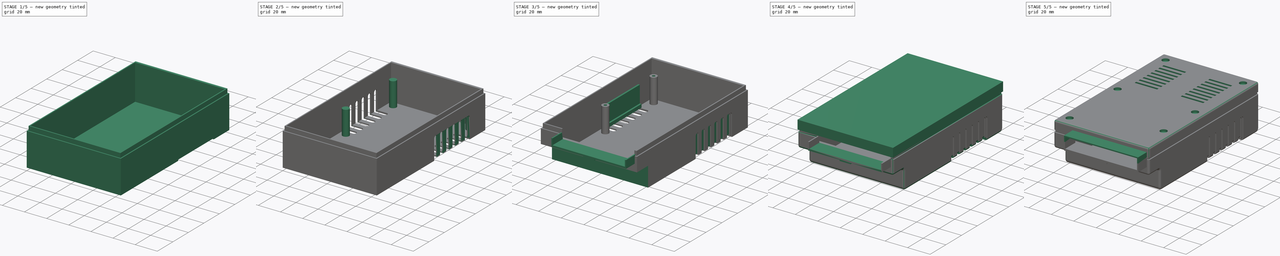
[diagram: build sequence overview — one tinted view per stage of 5, left to right]
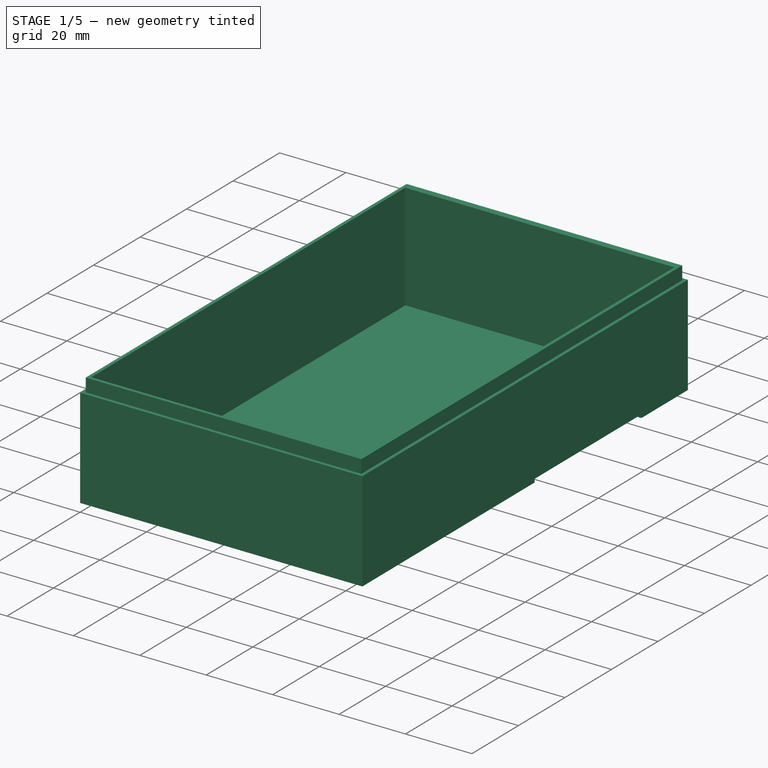
[diagram: stage 1 of 5 — iso view after this stage's code; geometry added in this stage tinted green]
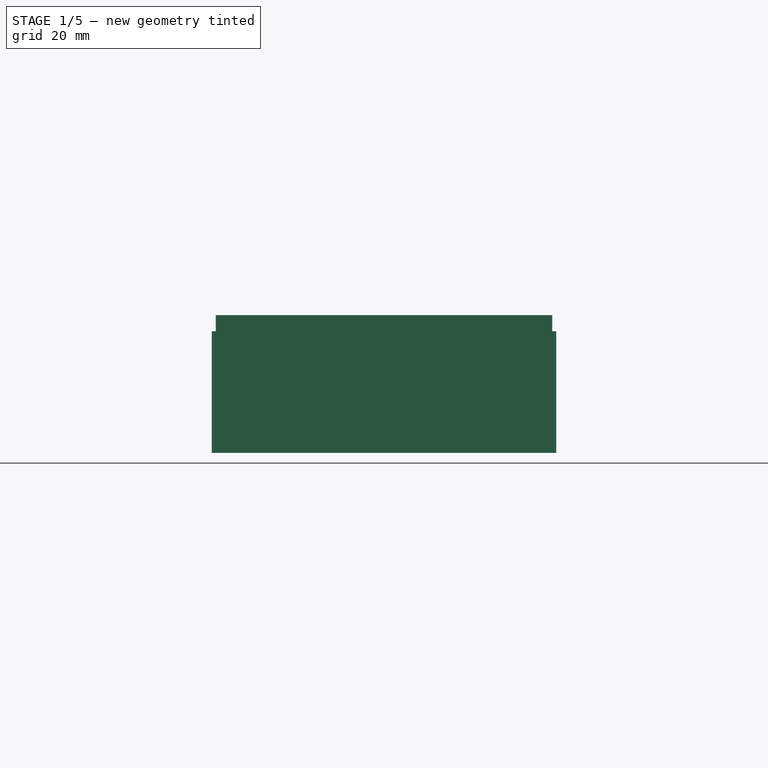
[diagram: stage 1 of 5 — front view after this stage's code; geometry added in this stage tinted green]
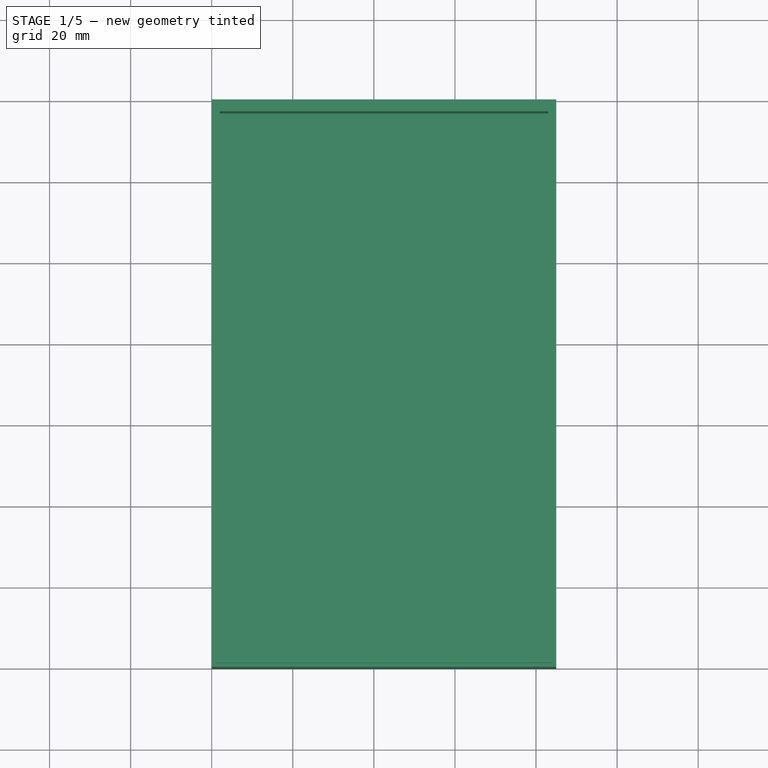
[diagram: stage 1 of 5 — top view after this stage's code; geometry added in this stage tinted green]
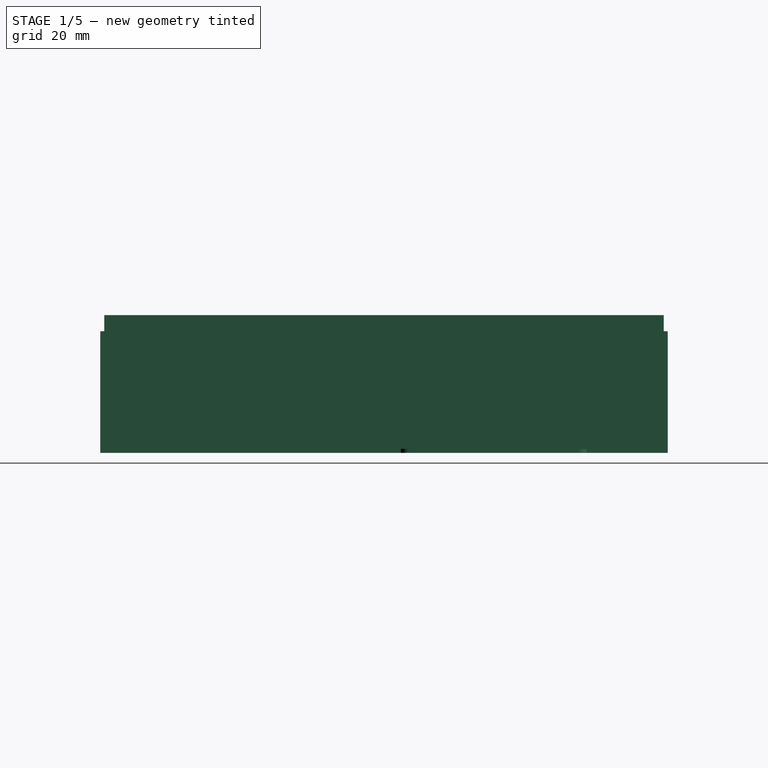
[diagram: stage 1 of 5 — right view after this stage's code; geometry added in this stage tinted green]
FCSTD DOCUMENT  (FreeCAD 0.19R24291 (Git))
Label: Expansion
License: All rights reserved
LicenseURL: http://en.wikipedia.org/wiki/All_rights_reserved
objects: Sketcher::SketchObject×28, PartDesign::Pocket×19, PartDesign::Pad×9, PartDesign::Body×2, Part::Fillet×2
note: 88 computed .brp shape members not serialized (recipe doc carries the construction recipe); baked Part::Feature solids carry a one-line shape summary decoded from their .brp

FEATURE [Sketcher::SketchObject] CopySketch008  label="TopCaseOutside"
  FullyConstrained = false
  MapMode = 5
  Support = -> [XY_Plane001]
  sketch-geometry (4):
    g0: LineSegment StartX=0 StartY=140 StartZ=0 EndX=85 EndY=140 EndZ=0
    g1: LineSegment StartX=85 StartY=140 StartZ=0 EndX=85 EndY=0 EndZ=0
    g2: LineSegment StartX=85 StartY=1e-16 StartZ=0 EndX=0 EndY=1e-16 EndZ=0
    g3: LineSegment StartX=0 StartY=1e-16 StartZ=0 EndX=0 EndY=140 EndZ=0
  constraints (11):
    c: Coincident(g0,g1)
    c: Coincident(g1,g2)
    c: Coincident(g2,g3)
    c: Coincident(g3,g0)
    c: Horizontal(g0)
    c: Horizontal(g2)
    c: Vertical(g1)
    c: Vertical(g3)
    c: DistanceX(g0,g0) = 85
    c: DistanceY(g1,g1) = 140
    c: Coincident(g2,g-1)
FEATURE [PartDesign::Pad] Pad003  label="PadTopCaseHeight"
  AllowMultiFace = false
  Direction = (1,1,1)
  Length = 30
  Length2 = 100
  Profile = -> CopySketch008
  Reversed = true
  Type = 0
FEATURE [Sketcher::SketchObject] Sketch008
  AttachmentOffset = pos=(0,0,-2) rot=(0,0,1;0rad)
  ExternalGeometry = -> [Sketch001]
  FullyConstrained = true
  MapMode = 5
  Placement = pos=(0,0,-2) rot=(0,0,1;0rad)
  Support = -> [XY_Plane001]
  sketch-geometry (8):
    g0: LineSegment StartX=2 StartY=137 StartZ=0 EndX=83 EndY=137 EndZ=0
    g1: LineSegment StartX=83 StartY=137 StartZ=0 EndX=83 EndY=2 EndZ=0
    g2: LineSegment StartX=83 StartY=2 StartZ=0 EndX=2 EndY=2 EndZ=0
    g3: LineSegment StartX=2 StartY=2 StartZ=0 EndX=2 EndY=137 EndZ=0
    g4: LineSegment StartX=1 StartY=139 StartZ=0 EndX=84 EndY=139 EndZ=0
    g5: LineSegment StartX=84 StartY=139 StartZ=0 EndX=84 EndY=1 EndZ=0
    g6: LineSegment StartX=84 StartY=1 StartZ=0 EndX=1 EndY=1 EndZ=0
    g7: LineSegment StartX=1 StartY=1 StartZ=0 EndX=1 EndY=139 EndZ=0
  constraints (22):
    c: Coincident(g0,g1)
    c: Coincident(g1,g2)
    c: Coincident(g2,g3)
    c: Coincident(g3,g0)
    c: Horizontal(g0)
    c: Horizontal(g2)
    c: Vertical(g1)
    c: Vertical(g3)
    c: DistanceY(g-4,g2) = 1
    c: DistanceY(g0,g-3) = 2
    c: DistanceX(g-3,g0) = 1
    c: DistanceX(g0,g-4) = 1
    c: Coincident(g4,g5)
    c: Coincident(g5,g6)
    c: Coincident(g6,g7)
    c: Coincident(g7,g4)
    c: Horizontal(g4)
    c: Horizontal(g6)
    c: Vertical(g5)
    c: Vertical(g7)
    c: Coincident(g4,g-3)
    c: Coincident(g5,g-4)
FEATURE [Sketcher::SketchObject] Sketch009
  ExternalGeometry = -> [Sketch008]
  FullyConstrained = true
  MapMode = 5
  Support = -> [XY_Plane001]
  sketch-geometry (4):
    g0: LineSegment StartX=2 StartY=137 StartZ=0 EndX=83 EndY=137 EndZ=0
    g1: LineSegment StartX=83 StartY=137 StartZ=0 EndX=83 EndY=15 EndZ=0
    g2: LineSegment StartX=83 StartY=15 StartZ=0 EndX=2 EndY=15 EndZ=0
    g3: LineSegment StartX=2 StartY=15 StartZ=0 EndX=2 EndY=137 EndZ=0
  constraints (11):
    c: Coincident(g0,g1)
    c: Coincident(g1,g2)
    c: Coincident(g2,g3)
    c: Coincident(g3,g0)
    c: Horizontal(g0)
    c: Horizontal(g2)
    c: Vertical(g1)
    c: Vertical(g3)
    c: Coincident(g0,g-4)
    c: PointOnObject(g1,g-5)
    c: DistanceY(g1,g0) = 122
FEATURE [PartDesign::Pocket] Pocket005  label="HollowInsideTopRear"
  AllowMultiFace = false
  BaseFeature = -> Pad003
  Length = 28
  Length2 = 100
  Profile = -> Sketch009
  Type = 0
FEATURE [PartDesign::Pad] Pad004  label="TopLipInside"
  AllowMultiFace = false
  BaseFeature = -> Pocket005
  Direction = (1,1,1)
  Length = 6
  Length2 = 100
  Profile = -> Sketch008
  Type = 0
FEATURE [Sketcher::SketchObject] Sketch010
  ExternalGeometry = -> [Sketch009,Sketch008]
  FullyConstrained = true
  MapMode = 5
  Support = -> [XY_Plane001]
  sketch-geometry (4):
    g0: LineSegment StartX=2 StartY=15 StartZ=0 EndX=83 EndY=15 EndZ=0
    g1: LineSegment StartX=83 StartY=15 StartZ=0 EndX=83 EndY=2 EndZ=0
    g2: LineSegment StartX=83 StartY=2 StartZ=0 EndX=2 EndY=2 EndZ=0
    g3: LineSegment StartX=2 StartY=2 StartZ=0 EndX=2 EndY=15 EndZ=0
  constraints (10):
    c: Coincident(g0,g1)
    c: Coincident(g1,g2)
    c: Coincident(g2,g3)
    c: Coincident(g3,g0)
    c: Horizontal(g0)
    c: Horizontal(g2)
    c: Vertical(g1)
    c: Vertical(g3)
    c: Coincident(g0,g-3)
    c: Coincident(g1,g-6)
FEATURE [PartDesign::Pocket] Pocket006  label="HollowInsideTopFront"
  AllowMultiFace = false
  BaseFeature = -> Pad004
  Length = 10.5
  Length2 = 100
  Profile = -> Sketch010
  Type = 0
FEATURE [Sketcher::SketchObject] Sketch011
  FullyConstrained = true
  MapMode = 5
  Placement = pos=(0,0,0) rot=(0.57735,0.57735,0.57735;2.0944rad)
  Support = -> [YZ_Plane001]
  sketch-geometry (4):
    g0: LineSegment StartX=0 StartY=-12.5 StartZ=0 EndX=14 EndY=-12.5 EndZ=0
    g1: LineSegment StartX=14 StartY=-12.5 StartZ=0 EndX=14 EndY=-30 EndZ=0
    g2: LineSegment StartX=14 StartY=-30 StartZ=0 EndX=0 EndY=-30 EndZ=0
    g3: LineSegment StartX=0 StartY=-30 StartZ=0 EndX=0 EndY=-12.5 EndZ=0
  constraints (12):
    c: Coincident(g0,g1)
    c: Coincident(g1,g2)
    c: Coincident(g2,g3)
    c: Coincident(g3,g0)
    c: Horizontal(g0)
    c: Horizontal(g2)
    c: Vertical(g1)
    c: Vertical(g3)
    c: DistanceY(g0,g-1) = 12.5
    c: DistanceX(g-1,g0) = 0
    c: DistanceX(g2,g1) = 14
    c: DistanceY(g2,g0) = 17.5
FEATURE [Sketcher::SketchObject] Sketch012
  AttachmentOffset = pos=(0,0,-30) rot=(0,0,1;0rad)
  FullyConstrained = true
  MapMode = 5
  Placement = pos=(0,0,-30) rot=(0,0,1;0rad)
  Support = -> [XY_Plane001]
  sketch-geometry (12):
    g0: LineSegment StartX=0 StartY=120 StartZ=0 EndX=11 EndY=120 EndZ=0
    g1: LineSegment StartX=13 StartY=118 StartZ=0 EndX=13 EndY=76.1 EndZ=0
    g2: LineSegment StartX=11 StartY=74.1 StartZ=0 EndX=0 EndY=74.1 EndZ=0
    g3: LineSegment StartX=0 StartY=74.1 StartZ=0 EndX=0 EndY=120 EndZ=0
    g4: LineSegment StartX=74 StartY=120 StartZ=0 EndX=85 EndY=120 EndZ=0
    g5: LineSegment StartX=85 StartY=120 StartZ=0 EndX=85 EndY=74.1 EndZ=0
    g6: LineSegment StartX=85 StartY=74.1 StartZ=0 EndX=74 EndY=74.1 EndZ=0
    g7: LineSegment StartX=72 StartY=76.1 StartZ=0 EndX=72 EndY=118 EndZ=0
    g8: ArcOfCircle CenterX=11 CenterY=118 CenterZ=0 NormalX=0 NormalY=0 NormalZ=1 AngleXU=0 Radius=2 StartAngle=3.4e-15 EndAngle=1.5708
    g9: ArcOfCircle CenterX=11 CenterY=76.1 CenterZ=0 NormalX=0 NormalY=0 NormalZ=1 AngleXU=0 Radius=2 StartAngle=4.71239 EndAngle=6.28319
    g10: ArcOfCircle CenterX=74 CenterY=118 CenterZ=0 NormalX=0 NormalY=0 NormalZ=1 AngleXU=0 Radius=2 StartAngle=1.5708 EndAngle=3.14159
    g11: ArcOfCircle CenterX=74 CenterY=76.1 CenterZ=0 NormalX=0 NormalY=0 NormalZ=1 AngleXU=0 Radius=2 StartAngle=3.14159 EndAngle=4.71239
  constraints (32):
    c: Coincident(g2,g3)
    c: Coincident(g3,g0)
    c: Horizontal(g0)
    c: Horizontal(g2)
    c: Vertical(g1)
    c: Vertical(g3)
    c: Coincident(g4,g5)
    c: Coincident(g5,g6)
    c: Horizontal(g4)
    c: Horizontal(g6)
    c: Vertical(g5)
    c: Vertical(g7)
    c: Equal(g0,g4)
    c: Equal(g1,g7)
    c: DistanceY(g3,g3) = 45.9
    c: DistanceY(g-1,g0) = 120
    c: DistanceX(g-1,g2) = 0
    c: DistanceX(g-1,g4) = 85
    c: Tangent(g0,g8) = 1.5708
    c: Tangent(g1,g8) = 1.5708
    c: Tangent(g1,g9) = 1.5708
    c: Tangent(g2,g9) = 1.5708
    c: Tangent(g4,g10) = 1.5708
    c: Tangent(g7,g10) = 1.5708
    c: Tangent(g6,g11) = 1.5708
    c: Tangent(g7,g11) = 1.5708
    c: DistanceY(g10,g4) = 2
    c: Equal(g11,g9)
    c: DistanceX(g2,g2) = 11
    c: Equal(g6,g2)
    c: Equal(g4,g6)
    c: DistanceY(g4,g0) = 0
FEATURE [PartDesign::Pocket] Pocket008  label="PocketTopGrills"
  AllowMultiFace = false
  BaseFeature = -> Pocket006
  Length = 1
  Length2 = 100
  Profile = -> Sketch012
  Reversed = true
  Type = 0
FEATURE [Sketcher::SketchObject] Sketch013
  ExternalGeometry = -> [Sketch012]
  FullyConstrained = true
  MapMode = 5
  Placement = pos=(0,0,0) rot=(0.57735,0.57735,0.57735;2.0944rad)
  Support = -> [YZ_Plane001]
  sketch-geometry (6):
    g0: LineSegment StartX=76.1 StartY=-10 StartZ=0 EndX=118 EndY=-10 EndZ=0
    g1: LineSegment StartX=120 StartY=-12 StartZ=0 EndX=120 EndY=-30 EndZ=0
    g2: LineSegment StartX=120 StartY=-30 StartZ=0 EndX=74.1 EndY=-30 EndZ=0
    g3: LineSegment StartX=74.1 StartY=-30 StartZ=0 EndX=74.1 EndY=-12 EndZ=0
    g4: ArcOfCircle CenterX=76.1 CenterY=-12 CenterZ=0 NormalX=0 NormalY=0 NormalZ=1 AngleXU=0 Radius=2 StartAngle=1.5708 EndAngle=3.14159
    g5: ArcOfCircle CenterX=118 CenterY=-12 CenterZ=0 NormalX=0 NormalY=0 NormalZ=1 AngleXU=0 Radius=2 StartAngle=0 EndAngle=1.5708
  constraints (15):
    c: Coincident(g1,g2)
    c: Coincident(g2,g3)
    c: Horizontal(g0)
    c: Horizontal(g2)
    c: Vertical(g1)
    c: Vertical(g3)
    c: DistanceX(g2,g-3) = 0
    c: Tangent(g0,g4) = 1.5708
    c: Tangent(g3,g4) = 1.5708
    c: Tangent(g0,g5) = 1.5708
    c: Tangent(g1,g5) = 1.5708
    c: DistanceY(g5,g0) = 2
    c: DistanceY(g4,g0) = 2
    c: DistanceY(g1,g0) = 20
    c: Coincident(g1,g-3)
FEATURE [PartDesign::Pocket] Pocket009  label="PocketLeftGrill"
  AllowMultiFace = false
  BaseFeature = -> Pocket008
  Length = 1
  Length2 = 100
  Profile = -> Sketch013
  Reversed = true
  Type = 0
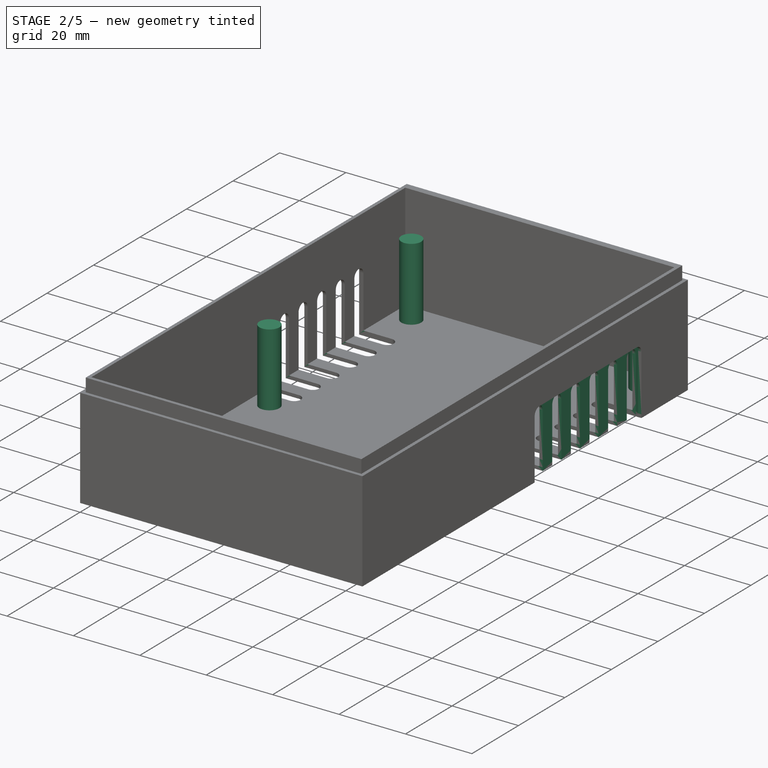
[diagram: stage 2 of 5 — iso view after this stage's code; geometry added in this stage tinted green]
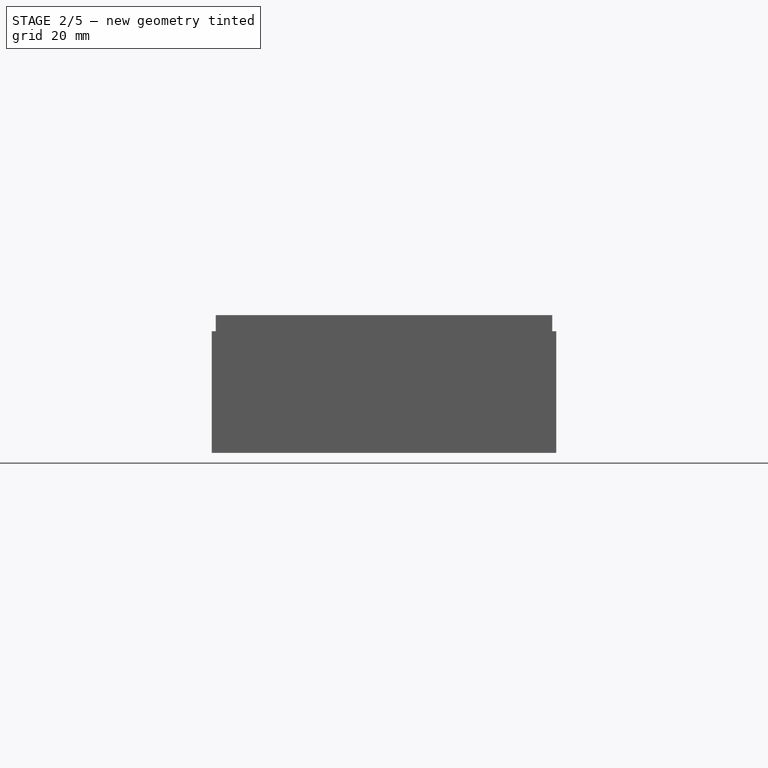
[diagram: stage 2 of 5 — front view after this stage's code; geometry added in this stage tinted green]
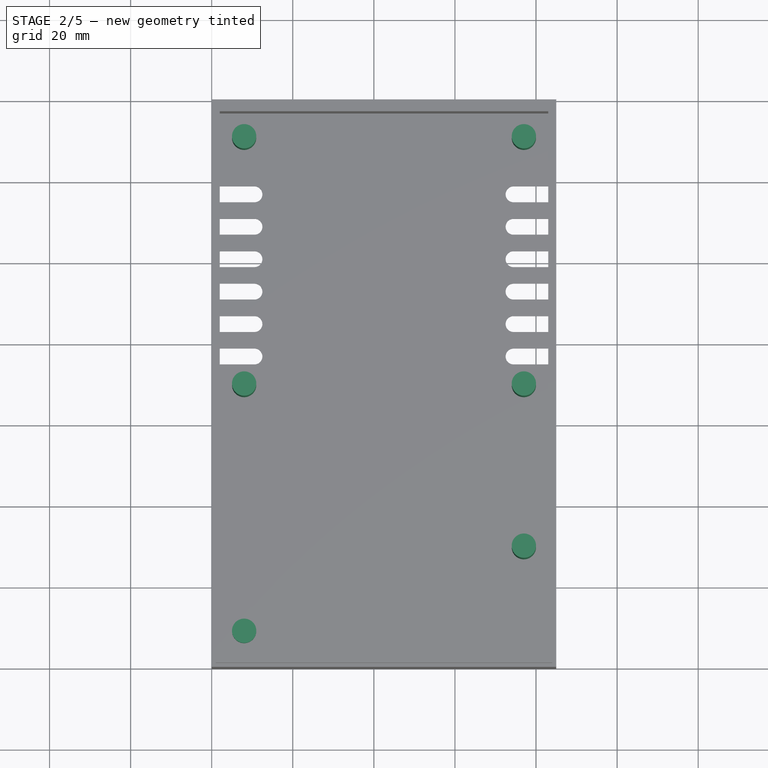
[diagram: stage 2 of 5 — top view after this stage's code; geometry added in this stage tinted green]
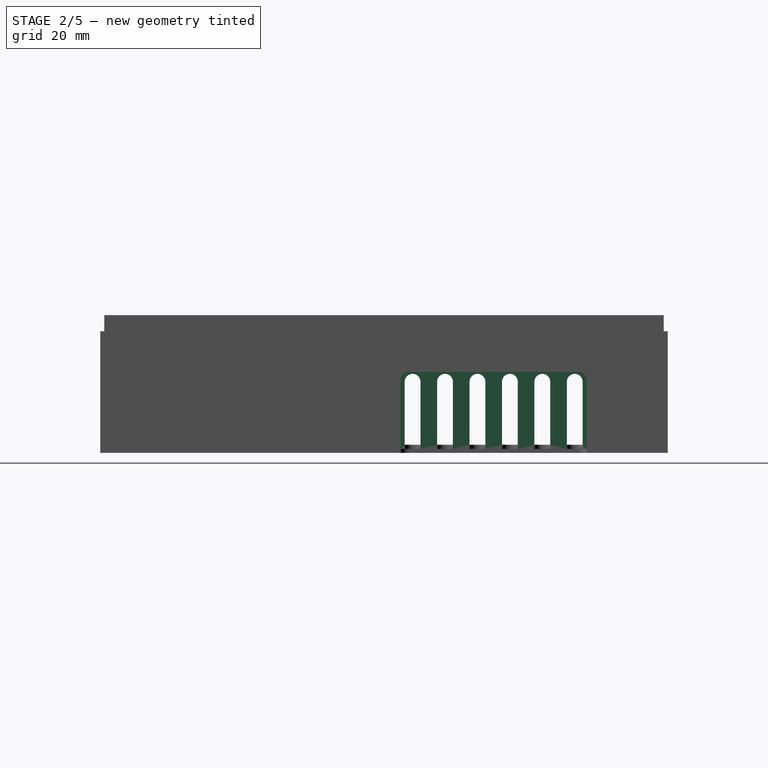
[diagram: stage 2 of 5 — right view after this stage's code; geometry added in this stage tinted green]
FEATURE [Sketcher::SketchObject] Sketch014
  AttachmentOffset = pos=(0,0,85) rot=(0,0,1;0rad)
  ExternalGeometry = -> [Sketch012]
  FullyConstrained = true
  MapMode = 5
  Placement = pos=(85,-1.89e-14,1.89e-14) rot=(0.57735,0.57735,0.57735;2.0944rad)
  Support = -> [YZ_Plane001]
  sketch-geometry (6):
    g0: LineSegment StartX=76.1 StartY=-10 StartZ=0 EndX=118 EndY=-10 EndZ=0
    g1: LineSegment StartX=120 StartY=-12 StartZ=0 EndX=120 EndY=-30 EndZ=0
    g2: LineSegment StartX=120 StartY=-30 StartZ=0 EndX=74.1 EndY=-30 EndZ=0
    g3: LineSegment StartX=74.1 StartY=-30 StartZ=0 EndX=74.1 EndY=-12 EndZ=0
    g4: ArcOfCircle CenterX=76.1 CenterY=-12 CenterZ=0 NormalX=0 NormalY=0 NormalZ=1 AngleXU=0 Radius=2 StartAngle=1.5708 EndAngle=3.14159
    g5: ArcOfCircle CenterX=118 CenterY=-12 CenterZ=0 NormalX=0 NormalY=0 NormalZ=1 AngleXU=0 Radius=2 StartAngle=-9e-16 EndAngle=1.5708
  constraints (15):
    c: Coincident(g1,g2)
    c: Coincident(g2,g3)
    c: Horizontal(g0)
    c: Horizontal(g2)
    c: Vertical(g1)
    c: Vertical(g3)
    c: DistanceX(g2,g-3) = 0
    c: Tangent(g0,g4) = 1.5708
    c: Tangent(g3,g4) = 1.5708
    c: Tangent(g0,g5) = 1.5708
    c: Tangent(g1,g5) = 1.5708
    c: DistanceY(g5,g0) = 2
    c: DistanceY(g4,g0) = 2
    c: DistanceY(g1,g0) = 20
    c: Coincident(g1,g-3)
FEATURE [PartDesign::Pocket] Pocket010  label="PocketRightGrill"
  AllowMultiFace = false
  BaseFeature = -> Pocket009
  Length = 1
  Length2 = 100
  Profile = -> Sketch014
  Type = 0
FEATURE [Sketcher::SketchObject] Sketch015
  AttachmentOffset = pos=(0,0,1) rot=(0,0,1;0rad)
  ExternalGeometry = -> [Sketch012,Sketch014]
  FullyConstrained = true
  MapMode = 5
  Placement = pos=(1,-2e-16,2e-16) rot=(0.57735,0.57735,0.57735;2.0944rad)
  Support = -> [YZ_Plane001]
  sketch-geometry (24):
    g0: LineSegment StartX=79 StartY=-12.45 StartZ=0 EndX=79 EndY=-28 EndZ=0
    g1: LineSegment StartX=79 StartY=-28 StartZ=0 EndX=75.1 EndY=-28 EndZ=0
    g2: LineSegment StartX=75.1 StartY=-28 StartZ=0 EndX=75.1 EndY=-12.45 EndZ=0
    g3: LineSegment StartX=87 StartY=-12.45 StartZ=0 EndX=87 EndY=-28 EndZ=0
    g4: LineSegment StartX=87 StartY=-28 StartZ=0 EndX=83.1 EndY=-28 EndZ=0
    g5: LineSegment StartX=83.1 StartY=-28 StartZ=0 EndX=83.1 EndY=-12.45 EndZ=0
    g6: LineSegment StartX=95 StartY=-12.45 StartZ=0 EndX=95 EndY=-28 EndZ=0
    g7: LineSegment StartX=95 StartY=-28 StartZ=0 EndX=91.1 EndY=-28 EndZ=0
    g8: LineSegment StartX=91.1 StartY=-28 StartZ=0 EndX=91.1 EndY=-12.45 EndZ=0
    g9: LineSegment StartX=103 StartY=-12.45 StartZ=0 EndX=103 EndY=-28 EndZ=0
    g10: LineSegment StartX=103 StartY=-28 StartZ=0 EndX=99.1 EndY=-28 EndZ=0
    g11: LineSegment StartX=99.1 StartY=-28 StartZ=0 EndX=99.1 EndY=-12.45 EndZ=0
    g12: LineSegment StartX=111 StartY=-12.45 StartZ=0 EndX=111 EndY=-28 EndZ=0
    g13: LineSegment StartX=111 StartY=-28 StartZ=0 EndX=107.1 EndY=-28 EndZ=0
    g14: LineSegment StartX=107.1 StartY=-28 StartZ=0 EndX=107.1 EndY=-12.45 EndZ=0
    g15: LineSegment StartX=119 StartY=-12.45 StartZ=0 EndX=119 EndY=-28 EndZ=0
    g16: LineSegment StartX=119 StartY=-28 StartZ=0 EndX=115.1 EndY=-28 EndZ=0
    g17: LineSegment StartX=115.1 StartY=-28 StartZ=0 EndX=115.1 EndY=-12.45 EndZ=0
    g18: ArcOfCircle CenterX=77.05 CenterY=-12.45 CenterZ=0 NormalX=0 NormalY=0 NormalZ=1 AngleXU=0 Radius=1.95 StartAngle=-9e-16 EndAngle=3.14159
    g19: ArcOfCircle CenterX=85.05 CenterY=-12.45 CenterZ=0 NormalX=0 NormalY=0 NormalZ=1 AngleXU=0 Radius=1.95 StartAngle=0 EndAngle=3.14159
    g20: ArcOfCircle CenterX=93.05 CenterY=-12.45 CenterZ=0 NormalX=0 NormalY=0 NormalZ=1 AngleXU=0 Radius=1.95 StartAngle=1e-16 EndAngle=3.14159
    g21: ArcOfCircle CenterX=101.05 CenterY=-12.45 CenterZ=0 NormalX=0 NormalY=0 NormalZ=1 AngleXU=0 Radius=1.95 StartAngle=1e-16 EndAngle=3.14159
    g22: ArcOfCircle CenterX=109.05 CenterY=-12.45 CenterZ=0 NormalX=0 NormalY=0 NormalZ=1 AngleXU=0 Radius=1.95 StartAngle=1e-16 EndAngle=3.14159
    g23: ArcOfCircle CenterX=117.05 CenterY=-12.45 CenterZ=0 NormalX=0 NormalY=0 NormalZ=1 AngleXU=0 Radius=1.95 StartAngle=4e-16 EndAngle=3.14159
  constraints (78):
    c: Coincident(g0,g1)
    c: Coincident(g1,g2)
    c: Horizontal(g1)
    c: Vertical(g0)
    c: Vertical(g2)
    c: Coincident(g3,g4)
    c: Coincident(g4,g5)
    c: Horizontal(g4)
    c: Vertical(g3)
    c: Vertical(g5)
    c: Coincident(g6,g7)
    c: Coincident(g7,g8)
    c: Horizontal(g7)
    c: Vertical(g6)
    c: Vertical(g8)
    c: Coincident(g9,g10)
    c: Coincident(g10,g11)
    c: Horizontal(g10)
    c: Vertical(g9)
    c: Vertical(g11)
    c: Coincident(g12,g13)
    c: Coincident(g13,g14)
    c: Horizontal(g13)
    c: Vertical(g12)
    c: Vertical(g14)
    c: Coincident(g15,g16)
    c: Coincident(g16,g17)
    c: Horizontal(g16)
    c: Vertical(g15)
    c: Vertical(g17)
    c: Equal(g1,g4)
    c: Equal(g4,g7)
    c: Equal(g7,g10)
    c: Equal(g13,g16)
    c: Equal(g10,g13)
    c: DistanceX(g2,g0) = 3.9
    c: DistanceY(g2,g-4) = 2.45
    c: DistanceY(g-3,g0) = 2
    c: Equal(g0,g2)
    c: DistanceX(g-3,g1) = 1
    c: Coincident(g18,g2)
    c: Coincident(g18,g0)
    c: DistanceY(g2,g18) = 0
    c: Equal(g0,g5)
    c: Equal(g5,g3)
    c: Equal(g3,g8)
    c: Equal(g8,g6)
    c: Equal(g6,g11)
    c: Equal(g9,g11)
    c: Equal(g9,g14)
    c: Equal(g14,g12)
    c: Equal(g12,g17)
    c: Equal(g17,g15)
    c: DistanceY(g4,g0) = 0
    c: DistanceY(g7,g3) = 0
    c: DistanceY(g10,g6) = 0
    c: DistanceY(g13,g9) = 0
    c: DistanceY(g16,g12) = 0
    c: DistanceX(g0,g4) = 4.1
    c: DistanceX(g3,g7) = 4.1
    c: DistanceX(g6,g10) = 4.1
    c: DistanceX(g9,g13) = 4.1
    c: DistanceX(g12,g16) = 4.1
    c: DistanceY(g18,g19) = 0
    c: Coincident(g19,g5)
    c: Coincident(g19,g3)
    c: Coincident(g20,g8)
    c: Coincident(g20,g6)
    c: Coincident(g21,g11)
    c: Coincident(g21,g9)
    c: Coincident(g22,g14)
    c: Coincident(g22,g12)
    c: Coincident(g23,g17)
    c: Coincident(g23,g15)
    c: DistanceY(g20,g19) = 0
    c: DistanceY(g21,g20) = 0
    c: DistanceY(g22,g21) = 0
    c: DistanceY(g23,g22) = 0
FEATURE [PartDesign::Pocket] Pocket011  label="PocketPatternRightGrill"
  AllowMultiFace = false
  BaseFeature = -> Pocket010
  Length = 1.5
  Length2 = 100
  Profile = -> Sketch015
  Reversed = true
  Type = 0
FEATURE [Sketcher::SketchObject] Sketch016
  AttachmentOffset = pos=(0,0,84) rot=(0,0,1;0rad)
  ExternalGeometry = -> [Sketch012,Sketch014]
  FullyConstrained = true
  MapMode = 5
  Placement = pos=(84,-1.87e-14,1.87e-14) rot=(0.57735,0.57735,0.57735;2.0944rad)
  Support = -> [YZ_Plane001]
  sketch-geometry (24):
    g0: LineSegment StartX=79 StartY=-12.45 StartZ=0 EndX=79 EndY=-28 EndZ=0
    g1: LineSegment StartX=79 StartY=-28 StartZ=0 EndX=75.1 EndY=-28 EndZ=0
    g2: LineSegment StartX=75.1 StartY=-28 StartZ=0 EndX=75.1 EndY=-12.45 EndZ=0
    g3: LineSegment StartX=87 StartY=-12.45 StartZ=0 EndX=87 EndY=-28 EndZ=0
    g4: LineSegment StartX=87 StartY=-28 StartZ=0 EndX=83.1 EndY=-28 EndZ=0
    g5: LineSegment StartX=83.1 StartY=-28 StartZ=0 EndX=83.1 EndY=-12.45 EndZ=0
    g6: LineSegment StartX=95 StartY=-12.45 StartZ=0 EndX=95 EndY=-28 EndZ=0
    g7: LineSegment StartX=95 StartY=-28 StartZ=0 EndX=91.1 EndY=-28 EndZ=0
    g8: LineSegment StartX=91.1 StartY=-28 StartZ=0 EndX=91.1 EndY=-12.45 EndZ=0
    g9: LineSegment StartX=103 StartY=-12.45 StartZ=0 EndX=103 EndY=-28 EndZ=0
    g10: LineSegment StartX=103 StartY=-28 StartZ=0 EndX=99.1 EndY=-28 EndZ=0
    g11: LineSegment StartX=99.1 StartY=-28 StartZ=0 EndX=99.1 EndY=-12.45 EndZ=0
    g12: LineSegment StartX=111 StartY=-12.45 StartZ=0 EndX=111 EndY=-28 EndZ=0
    g13: LineSegment StartX=111 StartY=-28 StartZ=0 EndX=107.1 EndY=-28 EndZ=0
    g14: LineSegment StartX=107.1 StartY=-28 StartZ=0 EndX=107.1 EndY=-12.45 EndZ=0
    g15: LineSegment StartX=119 StartY=-12.45 StartZ=0 EndX=119 EndY=-28 EndZ=0
    g16: LineSegment StartX=119 StartY=-28 StartZ=0 EndX=115.1 EndY=-28 EndZ=0
    g17: LineSegment StartX=115.1 StartY=-28 StartZ=0 EndX=115.1 EndY=-12.45 EndZ=0
    g18: ArcOfCircle CenterX=77.05 CenterY=-12.45 CenterZ=0 NormalX=0 NormalY=0 NormalZ=1 AngleXU=0 Radius=1.95 StartAngle=0 EndAngle=3.14159
    g19: ArcOfCircle CenterX=85.05 CenterY=-12.45 CenterZ=0 NormalX=0 NormalY=0 NormalZ=1 AngleXU=0 Radius=1.95 StartAngle=0 EndAngle=3.14159
    g20: ArcOfCircle CenterX=93.05 CenterY=-12.45 CenterZ=0 NormalX=0 NormalY=0 NormalZ=1 AngleXU=0 Radius=1.95 StartAngle=1e-16 EndAngle=3.14159
    g21: ArcOfCircle CenterX=101.05 CenterY=-12.45 CenterZ=0 NormalX=0 NormalY=0 NormalZ=1 AngleXU=0 Radius=1.95 StartAngle=1e-16 EndAngle=3.14159
    g22: ArcOfCircle CenterX=109.05 CenterY=-12.45 CenterZ=0 NormalX=0 NormalY=0 NormalZ=1 AngleXU=0 Radius=1.95 StartAngle=1e-16 EndAngle=3.14159
    g23: ArcOfCircle CenterX=117.05 CenterY=-12.45 CenterZ=0 NormalX=0 NormalY=0 NormalZ=1 AngleXU=0 Radius=1.95 StartAngle=4e-16 EndAngle=3.14159
  constraints (78):
    c: Coincident(g0,g1)
    c: Coincident(g1,g2)
    c: Horizontal(g1)
    c: Vertical(g0)
    c: Vertical(g2)
    c: Coincident(g3,g4)
    c: Coincident(g4,g5)
    c: Horizontal(g4)
    c: Vertical(g3)
    c: Vertical(g5)
    c: Coincident(g6,g7)
    c: Coincident(g7,g8)
    c: Horizontal(g7)
    c: Vertical(g6)
    c: Vertical(g8)
    c: Coincident(g9,g10)
    c: Coincident(g10,g11)
    c: Horizontal(g10)
    c: Vertical(g9)
    c: Vertical(g11)
    c: Coincident(g12,g13)
    c: Coincident(g13,g14)
    c: Horizontal(g13)
    c: Vertical(g12)
    c: Vertical(g14)
    c: Coincident(g15,g16)
    c: Coincident(g16,g17)
    c: Horizontal(g16)
    c: Vertical(g15)
    c: Vertical(g17)
    c: Equal(g1,g4)
    c: Equal(g4,g7)
    c: Equal(g7,g10)
    c: Equal(g13,g16)
    c: Equal(g10,g13)
    c: DistanceX(g2,g0) = 3.9
    c: DistanceY(g2,g-4) = 2.45
    c: DistanceY(g-3,g0) = 2
    c: Equal(g0,g2)
    c: DistanceX(g-3,g1) = 1
    c: Coincident(g18,g2)
    c: Coincident(g18,g0)
    c: DistanceY(g2,g18) = 0
    c: Equal(g0,g5)
    c: Equal(g5,g3)
    c: Equal(g3,g8)
    c: Equal(g8,g6)
    c: Equal(g6,g11)
    c: Equal(g9,g11)
    c: Equal(g9,g14)
    c: Equal(g14,g12)
    c: Equal(g12,g17)
    c: Equal(g17,g15)
    c: DistanceY(g4,g0) = 0
    c: DistanceY(g7,g3) = 0
    c: DistanceY(g10,g6) = 0
    c: DistanceY(g13,g9) = 0
    c: DistanceY(g16,g12) = 0
    c: DistanceX(g0,g4) = 4.1
    c: DistanceX(g3,g7) = 4.1
    c: DistanceX(g6,g10) = 4.1
    c: DistanceX(g9,g13) = 4.1
    c: DistanceX(g12,g16) = 4.1
    c: DistanceY(g18,g19) = 0
    c: Coincident(g19,g5)
    c: Coincident(g19,g3)
    c: Coincident(g20,g8)
    c: Coincident(g20,g6)
    c: Coincident(g21,g11)
    c: Coincident(g21,g9)
    c: Coincident(g22,g14)
    c: Coincident(g22,g12)
    c: Coincident(g23,g17)
    c: Coincident(g23,g15)
    c: DistanceY(g20,g19) = 0
    c: DistanceY(g21,g20) = 0
    c: DistanceY(g22,g21) = 0
    c: DistanceY(g23,g22) = 0
FEATURE [PartDesign::Pocket] Pocket012  label="PocketPatternLeftGrill"
  AllowMultiFace = false
  BaseFeature = -> Pocket011
  Length = 1.5
  Length2 = 100
  Profile = -> Sketch016
  Type = 0
FEATURE [Sketcher::SketchObject] Sketch017
  AttachmentOffset = pos=(0,0,-29) rot=(0,0,1;0rad)
  ExternalGeometry = -> [Sketch016,Sketch012]
  FullyConstrained = true
  MapMode = 5
  Placement = pos=(0,0,-29) rot=(0,0,1;0rad)
  Support = -> [XY_Plane001]
  sketch-geometry (24):
    g0: LineSegment StartX=84 StartY=119 StartZ=0 EndX=74.45 EndY=119 EndZ=0
    g1: LineSegment StartX=84 StartY=115.1 StartZ=0 EndX=74.45 EndY=115.1 EndZ=0
    g2: LineSegment StartX=84 StartY=111 StartZ=0 EndX=74.45 EndY=111 EndZ=0
    g3: LineSegment StartX=84 StartY=107.1 StartZ=0 EndX=74.45 EndY=107.1 EndZ=0
    g4: LineSegment StartX=84 StartY=103 StartZ=0 EndX=74.45 EndY=103 EndZ=0
    g5: LineSegment StartX=84 StartY=99.1 StartZ=0 EndX=74.45 EndY=99.1 EndZ=0
    g6: LineSegment StartX=84 StartY=95 StartZ=0 EndX=74.45 EndY=95 EndZ=0
    g7: LineSegment StartX=84 StartY=91.1 StartZ=0 EndX=74.45 EndY=91.1 EndZ=0
    g8: LineSegment StartX=84 StartY=87 StartZ=0 EndX=74.45 EndY=87 EndZ=0
    g9: LineSegment StartX=84 StartY=83.1 StartZ=0 EndX=74.45 EndY=83.1 EndZ=0
    g10: LineSegment StartX=84 StartY=79 StartZ=0 EndX=74.45 EndY=79 EndZ=0
    g11: LineSegment StartX=84 StartY=75.1 StartZ=0 EndX=74.45 EndY=75.1 EndZ=0
    g12: ArcOfCircle CenterX=74.45 CenterY=117.05 CenterZ=0 NormalX=0 NormalY=0 NormalZ=1 AngleXU=0 Radius=1.95 StartAngle=1.5708 EndAngle=4.71239
    g13: ArcOfCircle CenterX=74.45 CenterY=109.05 CenterZ=0 NormalX=0 NormalY=0 NormalZ=1 AngleXU=0 Radius=1.95 StartAngle=1.5708 EndAngle=4.71239
    g14: ArcOfCircle CenterX=74.45 CenterY=101.05 CenterZ=0 NormalX=0 NormalY=0 NormalZ=1 AngleXU=0 Radius=1.95 StartAngle=1.5708 EndAngle=4.71239
    g15: ArcOfCircle CenterX=74.45 CenterY=93.05 CenterZ=0 NormalX=0 NormalY=0 NormalZ=1 AngleXU=0 Radius=1.95 StartAngle=1.5708 EndAngle=4.71239
    g16: ArcOfCircle CenterX=74.45 CenterY=85.05 CenterZ=0 NormalX=0 NormalY=0 NormalZ=1 AngleXU=0 Radius=1.95 StartAngle=1.5708 EndAngle=4.71239
    g17: ArcOfCircle CenterX=74.45 CenterY=77.05 CenterZ=0 NormalX=0 NormalY=0 NormalZ=1 AngleXU=0 Radius=1.95 StartAngle=1.5708 EndAngle=4.71239
    g18: LineSegment StartX=84 StartY=115.1 StartZ=0 EndX=84 EndY=119 EndZ=0
    g19: LineSegment StartX=84 StartY=111 StartZ=0 EndX=84 EndY=107.1 EndZ=0
    g20: LineSegment StartX=84 StartY=103 StartZ=0 EndX=84 EndY=99.1 EndZ=0
    g21: LineSegment StartX=84 StartY=95 StartZ=0 EndX=84 EndY=91.1 EndZ=0
    g22: LineSegment StartX=84 StartY=87 StartZ=0 EndX=84 EndY=83.1 EndZ=0
    g23: LineSegment StartX=84 StartY=79 StartZ=0 EndX=84 EndY=75.1 EndZ=0
  constraints (78):
    c: Horizontal(g0)
    c: Horizontal(g1)
    c: Horizontal(g2)
    c: Horizontal(g3)
    c: Horizontal(g4)
    c: Horizontal(g5)
    c: Horizontal(g6)
    c: Horizontal(g7)
    c: Horizontal(g8)
    c: Horizontal(g9)
    c: Horizontal(g10)
    c: Horizontal(g11)
    c: Equal(g11,g10)
    c: Equal(g9,g10)
    c: Equal(g8,g9)
    c: Equal(g7,g8)
    c: Equal(g6,g7)
    c: Equal(g6,g5)
    c: Equal(g5,g4)
    c: Equal(g4,g3)
    c: Equal(g3,g2)
    c: Equal(g1,g2)
    c: Equal(g0,g1)
    c: Coincident(g12,g0)
    c: Coincident(g12,g1)
    c: Coincident(g13,g2)
    c: Coincident(g13,g3)
    c: Coincident(g14,g4)
    c: Coincident(g14,g5)
    c: Coincident(g15,g6)
    c: Coincident(g15,g7)
    c: Coincident(g16,g8)
    c: Coincident(g16,g9)
    c: Coincident(g17,g10)
    c: Coincident(g17,g11)
    c: DistanceX(g12,g13) = 0
    c: DistanceX(g13,g14) = 0
    c: DistanceX(g14,g15) = 0
    c: DistanceX(g16,g15) = 0
    c: DistanceX(g17,g16) = 0
    c: DistanceX(g0,g12) = 0
    c: DistanceX(g-9,g0) = 2.45
    c: DistanceY(g-8,g0) = 0
    c: DistanceX(g0,g-8) = 0
    c: DistanceY(g-8,g1) = 0
    c: DistanceY(g2,g-7) = 0
    c: DistanceY(g-7,g3) = 0
    c: DistanceY(g4,g-6) = 0
    c: DistanceY(g-6,g5) = 0
    c: DistanceY(g6,g-5) = 0
    c: DistanceY(g-5,g7) = 0
    c: DistanceY(g8,g-4) = 0
    c: DistanceY(g-4,g9) = 0
    c: DistanceY(g10,g-3) = 0
    c: DistanceY(g-3,g11) = 0
    c: DistanceX(g0,g1) = 0
    c: DistanceX(g1,g2) = 0
    c: DistanceX(g2,g3) = 0
    c: DistanceX(g3,g4) = 0
    c: DistanceX(g4,g5) = 0
    c: DistanceX(g5,g6) = 0
    c: DistanceX(g6,g7) = 0
    c: DistanceX(g7,g8) = 0
    c: DistanceX(g8,g9) = 0
    c: DistanceX(g9,g10) = 0
    c: DistanceX(g10,g11) = 0
    c: Coincident(g18,g1)
    c: Coincident(g18,g0)
    c: Coincident(g19,g2)
    c: Coincident(g19,g3)
    c: Coincident(g20,g4)
    c: Coincident(g20,g5)
    c: Coincident(g21,g6)
    c: Coincident(g21,g7)
    c: Coincident(g22,g8)
    c: Coincident(g22,g9)
    c: Coincident(g23,g10)
    c: Coincident(g23,g11)
FEATURE [PartDesign::Pocket] Pocket013  label="PocketPatternTopLeftGrill"
  AllowMultiFace = false
  BaseFeature = -> Pocket012
  Length = 3
  Length2 = 100
  Profile = -> Sketch017
  Reversed = true
  Type = 0
FEATURE [Sketcher::SketchObject] Sketch018
  AttachmentOffset = pos=(0,0,-29) rot=(0,0,1;0rad)
  ExternalGeometry = -> [Sketch015,Sketch012]
  FullyConstrained = true
  MapMode = 5
  Placement = pos=(0,0,-29) rot=(0,0,1;0rad)
  Support = -> [XY_Plane001]
  sketch-geometry (24):
    g0: LineSegment StartX=1 StartY=119 StartZ=0 EndX=10.55 EndY=119 EndZ=0
    g1: LineSegment StartX=10.55 StartY=115.1 StartZ=0 EndX=1 EndY=115.1 EndZ=0
    g2: LineSegment StartX=1 StartY=115.1 StartZ=0 EndX=1 EndY=119 EndZ=0
    g3: LineSegment StartX=1 StartY=111 StartZ=0 EndX=10.55 EndY=111 EndZ=0
    g4: LineSegment StartX=10.55 StartY=107.1 StartZ=0 EndX=1 EndY=107.1 EndZ=0
    g5: LineSegment StartX=1 StartY=107.1 StartZ=0 EndX=1 EndY=111 EndZ=0
    g6: LineSegment StartX=1 StartY=103 StartZ=0 EndX=10.55 EndY=103 EndZ=0
    g7: LineSegment StartX=10.55 StartY=99.1 StartZ=0 EndX=1 EndY=99.1 EndZ=0
    g8: LineSegment StartX=1 StartY=99.1 StartZ=0 EndX=1 EndY=103 EndZ=0
    g9: LineSegment StartX=1 StartY=95 StartZ=0 EndX=10.55 EndY=95 EndZ=0
    g10: LineSegment StartX=10.55 StartY=91.1 StartZ=0 EndX=1 EndY=91.1 EndZ=0
    g11: LineSegment StartX=1 StartY=91.1 StartZ=0 EndX=1 EndY=95 EndZ=0
    g12: LineSegment StartX=1 StartY=87 StartZ=0 EndX=10.55 EndY=87 EndZ=0
    g13: LineSegment StartX=10.55 StartY=83.1 StartZ=0 EndX=1 EndY=83.1 EndZ=0
    g14: LineSegment StartX=1 StartY=83.1 StartZ=0 EndX=1 EndY=87 EndZ=0
    g15: LineSegment StartX=1 StartY=79 StartZ=0 EndX=10.55 EndY=79 EndZ=0
    g16: LineSegment StartX=10.55 StartY=75.1 StartZ=0 EndX=1 EndY=75.1 EndZ=0
    g17: LineSegment StartX=1 StartY=75.1 StartZ=0 EndX=1 EndY=79 EndZ=0
    g18: ArcOfCircle CenterX=10.55 CenterY=117.05 CenterZ=0 NormalX=0 NormalY=0 NormalZ=1 AngleXU=0 Radius=1.95 StartAngle=4.71239 EndAngle=7.85398
    g19: ArcOfCircle CenterX=10.55 CenterY=109.05 CenterZ=0 NormalX=0 NormalY=0 NormalZ=1 AngleXU=0 Radius=1.95 StartAngle=4.71239 EndAngle=7.85398
    g20: ArcOfCircle CenterX=10.55 CenterY=101.05 CenterZ=0 NormalX=0 NormalY=0 NormalZ=1 AngleXU=0 Radius=1.95 StartAngle=4.71239 EndAngle=7.85398
    g21: ArcOfCircle CenterX=10.55 CenterY=93.05 CenterZ=0 NormalX=0 NormalY=0 NormalZ=1 AngleXU=0 Radius=1.95 StartAngle=4.71239 EndAngle=7.85398
    g22: ArcOfCircle CenterX=10.55 CenterY=85.05 CenterZ=0 NormalX=0 NormalY=0 NormalZ=1 AngleXU=0 Radius=1.95 StartAngle=4.71239 EndAngle=7.85398
    g23: ArcOfCircle CenterX=10.55 CenterY=77.05 CenterZ=0 NormalX=0 NormalY=0 NormalZ=1 AngleXU=0 Radius=1.95 StartAngle=4.71239 EndAngle=7.85398
  constraints (78):
    c: Coincident(g1,g2)
    c: Horizontal(g0)
    c: Horizontal(g1)
    c: Vertical(g2)
    c: Coincident(g4,g5)
    c: Horizontal(g3)
    c: Horizontal(g4)
    c: Vertical(g5)
    c: Coincident(g7,g8)
    c: Coincident(g8,g6)
    c: Horizontal(g6)
    c: Horizontal(g7)
    c: Vertical(g8)
    c: Coincident(g10,g11)
    c: Coincident(g11,g9)
    c: Horizontal(g9)
    c: Horizontal(g10)
    c: Vertical(g11)
    c: Coincident(g13,g14)
    c: Coincident(g14,g12)
    c: Horizontal(g12)
    c: Horizontal(g13)
    c: Vertical(g14)
    c: Coincident(g16,g17)
    c: Coincident(g17,g15)
    c: Horizontal(g15)
    c: Horizontal(g16)
    c: Vertical(g17)
    c: Equal(g2,g5)
    c: Equal(g5,g8)
    c: Equal(g8,g11)
    c: Equal(g11,g14)
    c: Equal(g14,g17)
    c: Equal(g0,g1)
    c: Equal(g1,g3)
    c: Equal(g3,g4)
    c: Equal(g4,g6)
    c: Equal(g6,g7)
    c: Equal(g7,g9)
    c: Equal(g9,g10)
    c: Equal(g10,g12)
    c: Equal(g12,g13)
    c: Equal(g13,g15)
    c: Equal(g15,g16)
    c: Coincident(g2,g0)
    c: Coincident(g5,g3)
    c: DistanceX(g-8,g0) = 0
    c: DistanceX(g0,g-9) = 2.45
    c: DistanceY(g-8,g1) = 0
    c: DistanceY(g0,g-8) = 0
    c: DistanceY(g-7,g3) = 0
    c: DistanceY(g6,g-6) = 0
    c: DistanceY(g9,g-5) = 0
    c: DistanceY(g-4,g12) = 0
    c: DistanceY(g-3,g15) = 0
    c: DistanceX(g3,g1) = 0
    c: DistanceX(g4,g6) = 0
    c: DistanceX(g7,g9) = 0
    c: DistanceX(g10,g12) = 0
    c: DistanceX(g13,g15) = 0
    c: Coincident(g18,g0)
    c: Coincident(g18,g1)
    c: Coincident(g19,g3)
    c: Coincident(g19,g4)
    c: Coincident(g20,g6)
    c: Coincident(g20,g7)
    c: Coincident(g21,g9)
    c: Coincident(g21,g10)
    c: Coincident(g22,g12)
    c: Coincident(g22,g13)
    c: Coincident(g23,g15)
    c: Coincident(g23,g16)
    c: DistanceX(g18,g19) = 0
    c: DistanceX(g18,g0) = 0
    c: DistanceX(g20,g19) = 0
    c: DistanceX(g21,g20) = 0
    c: DistanceX(g22,g21) = 0
    c: DistanceX(g23,g22) = 0
FEATURE [PartDesign::Pocket] Pocket014  label="PocketPatternTopRightGrill"
  AllowMultiFace = false
  BaseFeature = -> Pocket013
  Length = 3
  Length2 = 100
  Profile = -> Sketch018
  Reversed = true
  Type = 0
FEATURE [Sketcher::SketchObject] Sketch019
  AttachmentOffset = pos=(0,0,-28) rot=(0,0,1;0rad)
  ExternalGeometry = -> [Sketch003]
  FullyConstrained = true
  MapMode = 5
  Placement = pos=(0,0,-28) rot=(0,0,1;0rad)
  Support = -> [XY_Plane001]
  sketch-geometry (6):
    g0: Circle CenterX=8 CenterY=70 CenterZ=0 NormalX=0 NormalY=0 NormalZ=1 AngleXU=0 Radius=3
    g1: Circle CenterX=77 CenterY=70 CenterZ=0 NormalX=0 NormalY=0 NormalZ=1 AngleXU=0 Radius=3
    g2: Circle CenterX=8 CenterY=9 CenterZ=0 NormalX=0 NormalY=0 NormalZ=1 AngleXU=0 Radius=3
    g3: Circle CenterX=77 CenterY=30 CenterZ=0 NormalX=0 NormalY=0 NormalZ=1 AngleXU=0 Radius=3
    g4: Circle CenterX=8 CenterY=131 CenterZ=0 NormalX=0 NormalY=0 NormalZ=1 AngleXU=0 Radius=3
    g5: Circle CenterX=77 CenterY=131 CenterZ=0 NormalX=0 NormalY=0 NormalZ=1 AngleXU=0 Radius=3
  constraints (12):
    c: Radius(g4) = 3
    c: Equal(g4,g5)
    c: Equal(g5,g1)
    c: Equal(g0,g4)
    c: Equal(g0,g2)
    c: Equal(g3,g1)
    c: Coincident(g4,g-3)
    c: Coincident(g5,g-4)
    c: Coincident(g1,g-5)
    c: Coincident(g0,g-6)
    c: Coincident(g2,g-7)
    c: Coincident(g3,g-8)
FEATURE [PartDesign::Pad] Pad005  label="TopCasePosts"
  AllowMultiFace = false
  BaseFeature = -> Pocket014
  Direction = (1,1,1)
  Length = 22
  Length2 = 100
  Profile = -> Sketch019
  Type = 0
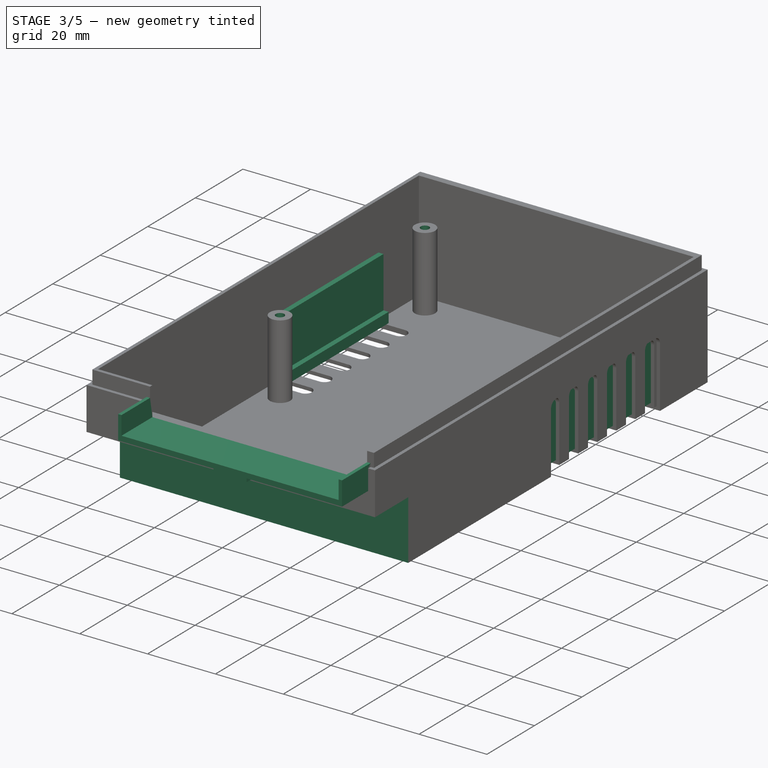
[diagram: stage 3 of 5 — iso view after this stage's code; geometry added in this stage tinted green]
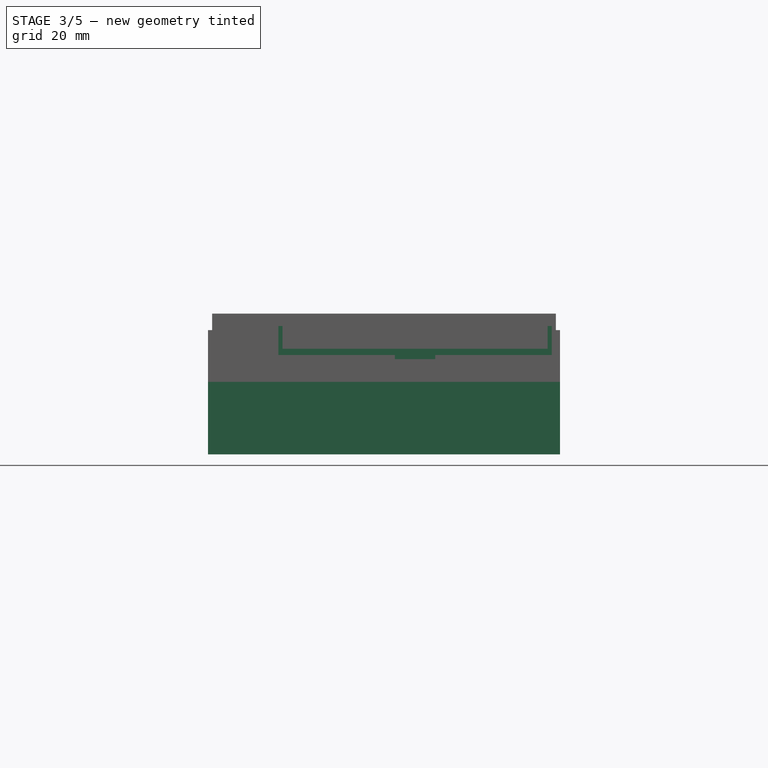
[diagram: stage 3 of 5 — front view after this stage's code; geometry added in this stage tinted green]
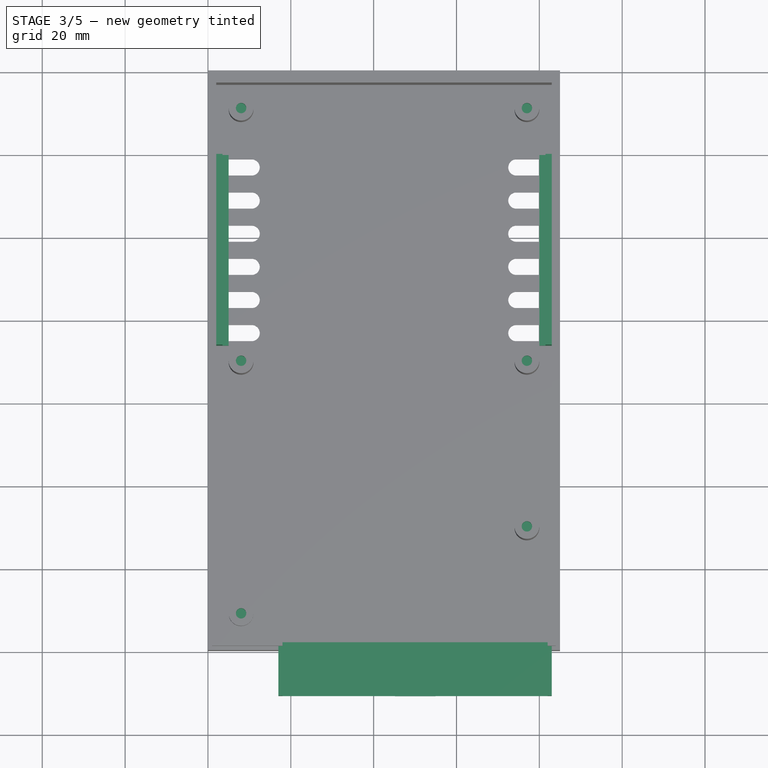
[diagram: stage 3 of 5 — top view after this stage's code; geometry added in this stage tinted green]
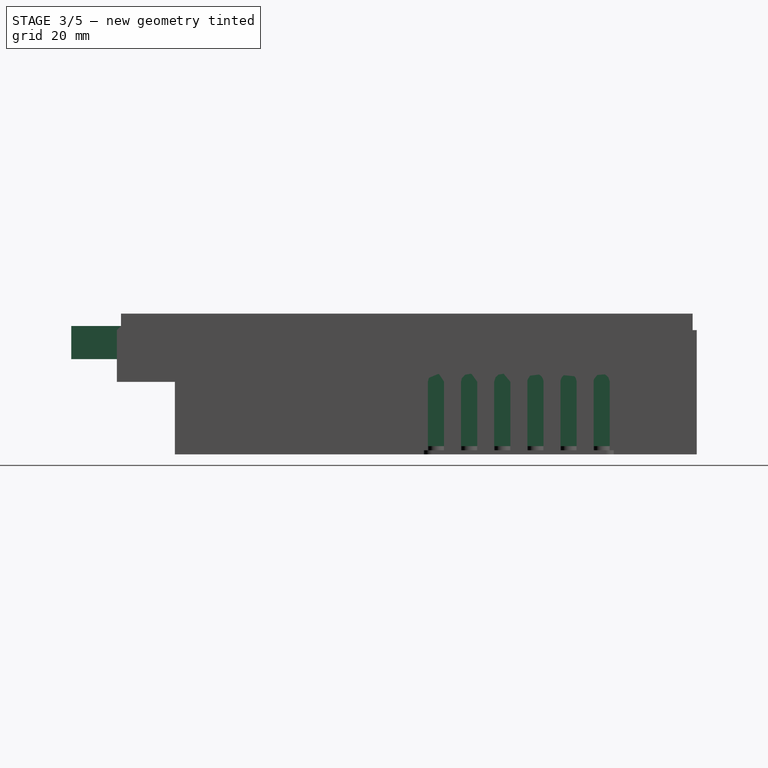
[diagram: stage 3 of 5 — right view after this stage's code; geometry added in this stage tinted green]
FEATURE [Sketcher::SketchObject] Sketch024
  AttachmentOffset = pos=(0,0,-74) rot=(0,0,1;0rad)
  ExternalGeometry = -> [Sketch018,Sketch017]
  FullyConstrained = true
  MapMode = 5
  Placement = pos=(0,74,1.64e-14) rot=(1,0,0;1.5708rad)
  Support = -> [XZ_Plane001]
  sketch-geometry (12):
    g0: LineSegment StartX=5 StartY=-25 StartZ=0 EndX=5 EndY=-28 EndZ=0
    g1: LineSegment StartX=5 StartY=-28 StartZ=0 EndX=2 EndY=-28 EndZ=0
    g2: LineSegment StartX=83 StartY=-28 StartZ=0 EndX=80 EndY=-28 EndZ=0
    g3: LineSegment StartX=80 StartY=-28 StartZ=0 EndX=80 EndY=-25 EndZ=0
    g4: LineSegment StartX=81.5 StartY=-10 StartZ=0 EndX=83 EndY=-10 EndZ=0
    g5: LineSegment StartX=83 StartY=-10 StartZ=0 EndX=83 EndY=-28 EndZ=0
    g6: LineSegment StartX=81.5 StartY=-25 StartZ=0 EndX=81.5 EndY=-10 EndZ=0
    g7: LineSegment StartX=2 StartY=-10 StartZ=0 EndX=3.5 EndY=-10 EndZ=0
    g8: LineSegment StartX=3.5 StartY=-10 StartZ=0 EndX=3.5 EndY=-25 EndZ=0
    g9: LineSegment StartX=2 StartY=-28 StartZ=0 EndX=2 EndY=-10 EndZ=0
    g10: LineSegment StartX=3.5 StartY=-25 StartZ=0 EndX=5 EndY=-25 EndZ=0
    g11: LineSegment StartX=80 StartY=-25 StartZ=0 EndX=81.5 EndY=-25 EndZ=0
  constraints (36):
    c: Coincident(g0,g1)
    c: Horizontal(g1)
    c: Vertical(g0)
    c: Coincident(g2,g3)
    c: Horizontal(g2)
    c: Vertical(g3)
    c: Equal(g0,g3)
    c: DistanceY(g3,g3) = 3
    c: DistanceY(g0,g3) = 0
    c: DistanceY(g-3,g1) = 1
    c: Coincident(g4,g5)
    c: Coincident(g6,g4)
    c: Horizontal(g4)
    c: Vertical(g5)
    c: Vertical(g6)
    c: DistanceX(g4,g4) = 1.5
    c: DistanceY(g6,g6) = 15
    c: Coincident(g7,g8)
    c: Coincident(g9,g7)
    c: Horizontal(g7)
    c: Vertical(g8)
    c: Vertical(g9)
    c: Equal(g7,g4)
    c: Equal(g6,g8)
    c: Coincident(g10,g8)
    c: Coincident(g10,g0)
    c: Horizontal(g10)
    c: Coincident(g11,g3)
    c: Coincident(g11,g6)
    c: Horizontal(g11)
    c: DistanceX(g11,g11) = 1.5
    c: Coincident(g5,g2)
    c: Equal(g1,g2)
    c: Coincident(g9,g1)
    c: DistanceX(g-3,g1) = 1
    c: DistanceX(g2,g-4) = 1
FEATURE [PartDesign::Pad] Pad007  label="PadPatternGrills"
  AllowMultiFace = false
  BaseFeature = -> Pad005
  Direction = (1,1,1)
  Length = 46
  Length2 = 100
  Profile = -> Sketch024
  Refine = true
  Reversed = true
  Type = 0
FEATURE [PartDesign::Pocket] Pocket015  label="TopCaseScrewHoles"
  AllowMultiFace = false
  BaseFeature = -> Pad007
  Length = 10
  Length2 = 100
  Profile = -> Sketch020
  Type = 0
FEATURE [PartDesign::Pocket] Pocket017  label="RemoveEdgeConnector"
  AllowMultiFace = false
  BaseFeature = -> Pocket015
  Length = 13
  Length2 = 100
  Profile = -> Sketch023
  Type = 0
FEATURE [PartDesign::Pocket] Pocket007  label="RemoveFrontL"
  AllowMultiFace = false
  BaseFeature = -> Pocket017
  Length = 85
  Length2 = 100
  Profile = -> Sketch011
  Reversed = true
  Type = 0
FEATURE [Sketcher::SketchObject] Sketch025
  AttachmentOffset = pos=(0,0,11) rot=(0,0,1;0rad)
  FullyConstrained = false
  MapMode = 5
  Placement = pos=(0,-11,-2.4e-15) rot=(1,0,0;1.5708rad)
  Support = -> [XZ_Plane001]
  sketch-geometry (8):
    g0: LineSegment StartX=83 StartY=1 StartZ=0 EndX=83 EndY=-6 EndZ=0
    g1: LineSegment StartX=83 StartY=-6 StartZ=0 EndX=54.875 EndY=-6 EndZ=0
    g2: LineSegment StartX=17 StartY=-6 StartZ=0 EndX=17 EndY=1 EndZ=0
    g3: LineSegment StartX=17 StartY=1 StartZ=0 EndX=83 EndY=1 EndZ=0
    g4: LineSegment StartX=54.875 StartY=-6 StartZ=0 EndX=54.875 EndY=-7 EndZ=0
    g5: LineSegment StartX=54.875 StartY=-7 StartZ=0 EndX=45.125 EndY=-7 EndZ=0
    g6: LineSegment StartX=45.125 StartY=-7 StartZ=0 EndX=45.125 EndY=-6 EndZ=0
    g7: LineSegment StartX=45.125 StartY=-6 StartZ=0 EndX=17 EndY=-6 EndZ=0
  constraints (23):
    c: Coincident(g0,g1)
    c: Coincident(g7,g2)
    c: Horizontal(g1)
    c: Vertical(g0)
    c: Vertical(g2)
    c: DistanceY(g7,g2) = 7
    c: Coincident(g3,g2)
    c: Coincident(g3,g0)
    c: Horizontal(g3)
    c: Coincident(g4,g5)
    c: Coincident(g5,g6)
    c: Horizontal(g5)
    c: Vertical(g4)
    c: Vertical(g6)
    c: Tangent(g1,g7)
    c: Coincident(g6,g7)
    c: Coincident(g4,g1)
    c: Equal(g1,g7)
    c: DistanceY(g4,g1) = 1
    c: DistanceX(g5,g4) = 9.75
    c: DistanceX(g2,g0) = 66
    c: DistanceX(g-1,g2) = 17
    c: DistanceY(g-1,g2) = 1
FEATURE [PartDesign::Pad] Pad008  label="TopEdgeConnectorShroud"
  AllowMultiFace = false
  BaseFeature = -> Pocket007
  Direction = (1,1,1)
  Length = 13
  Length2 = 100
  Profile = -> Sketch025
  Refine = true
  Reversed = true
  Type = 0
FEATURE [Sketcher::SketchObject] Sketch026
  AttachmentOffset = pos=(0,0,11) rot=(0,0,1;0rad)
  FullyConstrained = true
  MapMode = 5
  Placement = pos=(0,-11,-2.4e-15) rot=(1,0,0;1.5708rad)
  Support = -> [XZ_Plane001]
  sketch-geometry (4):
    g0: LineSegment StartX=18 StartY=5.5 StartZ=0 EndX=82 EndY=5.5 EndZ=0
    g1: LineSegment StartX=82 StartY=5.5 StartZ=0 EndX=82 EndY=-4.5 EndZ=0
    g2: LineSegment StartX=82 StartY=-4.5 StartZ=0 EndX=18 EndY=-4.5 EndZ=0
    g3: LineSegment StartX=18 StartY=-4.5 StartZ=0 EndX=18 EndY=5.5 EndZ=0
  constraints (12):
    c: Coincident(g0,g1)
    c: Coincident(g1,g2)
    c: Coincident(g2,g3)
    c: Coincident(g3,g0)
    c: Horizontal(g0)
    c: Horizontal(g2)
    c: Vertical(g1)
    c: Vertical(g3)
    c: DistanceY(g1,g1) = 10
    c: DistanceX(g0,g0) = 64
    c: DistanceY(g-1,g0) = 5.5
    c: DistanceX(g-1,g2) = 18
FEATURE [PartDesign::Pocket] Pocket018  label="HollowEdgeConnectorShroud"
  AllowMultiFace = false
  BaseFeature = -> Pad008
  Length = 13
  Length2 = 100
  Profile = -> Sketch026
  Refine = true
  Type = 0
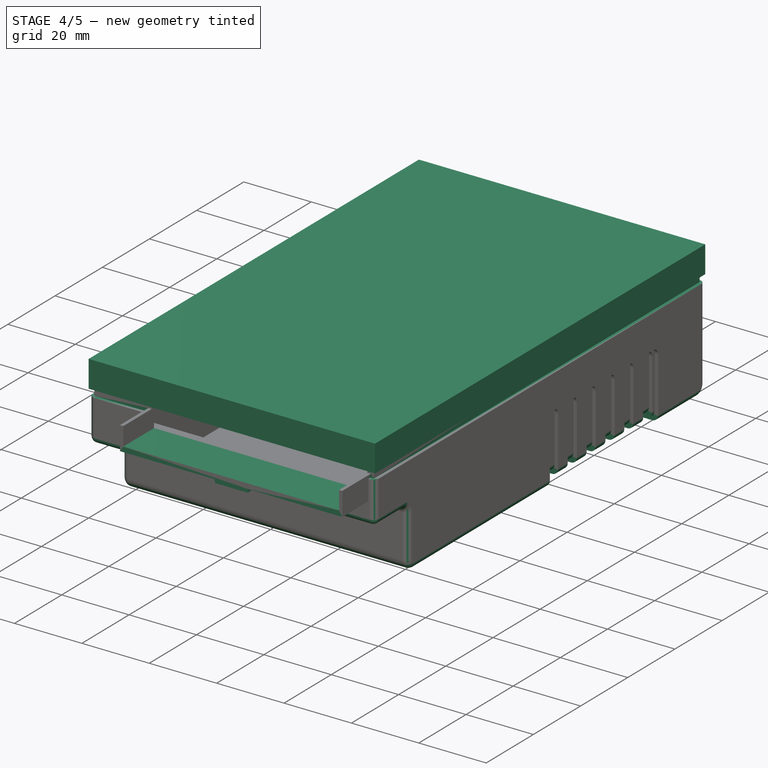
[diagram: stage 4 of 5 — iso view after this stage's code; geometry added in this stage tinted green]
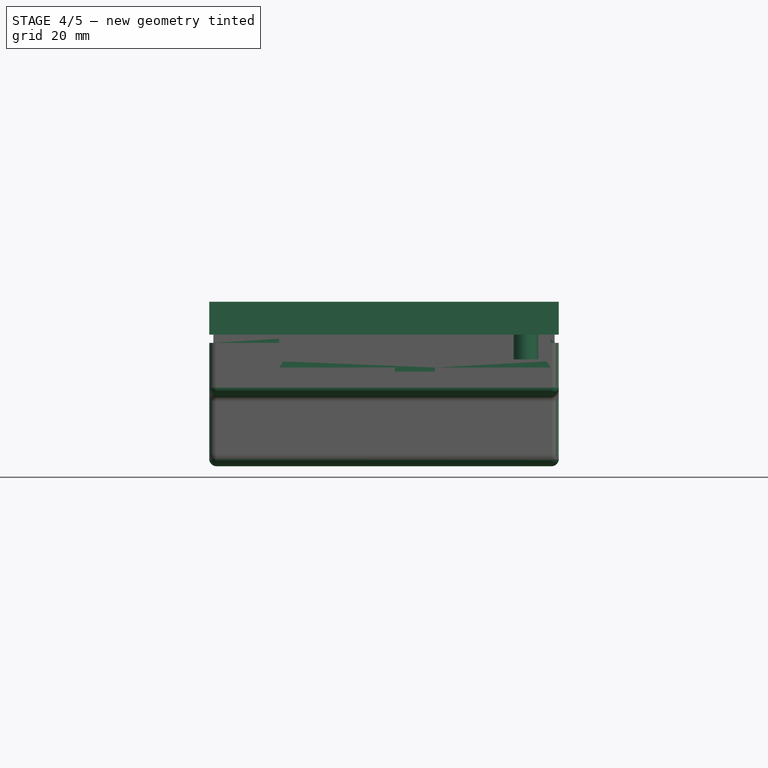
[diagram: stage 4 of 5 — front view after this stage's code; geometry added in this stage tinted green]
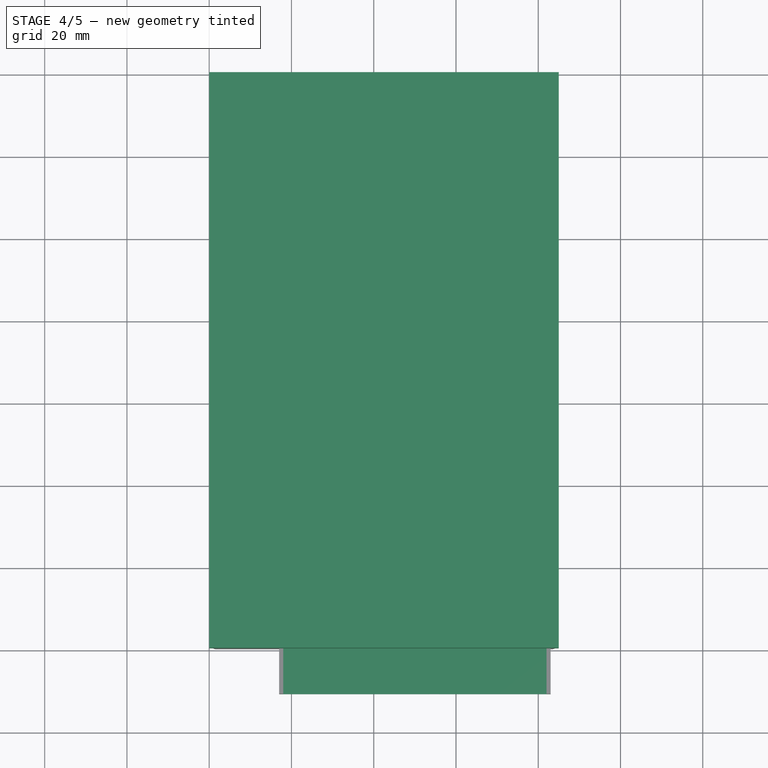
[diagram: stage 4 of 5 — top view after this stage's code; geometry added in this stage tinted green]
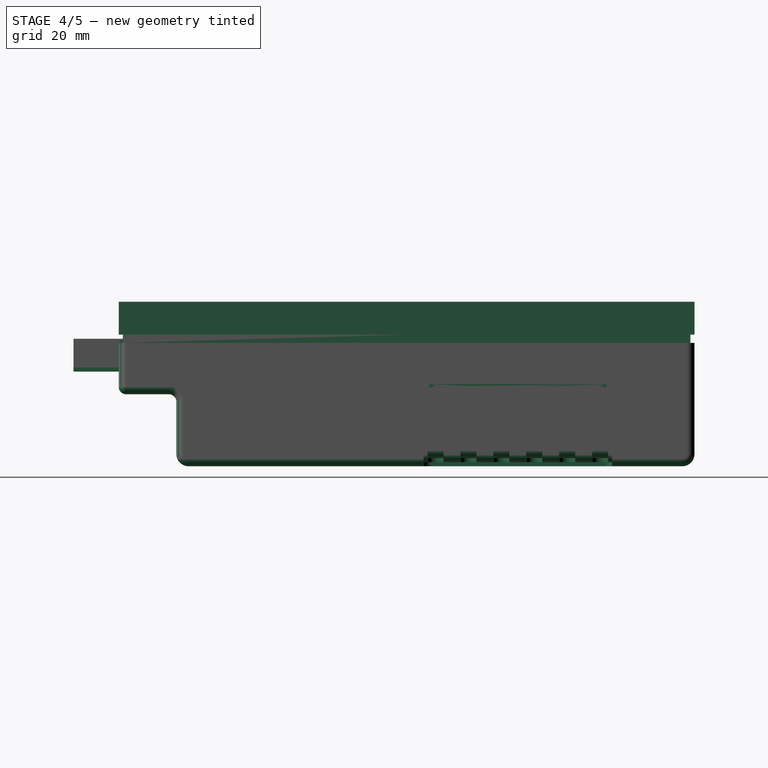
[diagram: stage 4 of 5 — right view after this stage's code; geometry added in this stage tinted green]
FEATURE [Sketcher::SketchObject] Sketch  label="SketchBottomOutline"
  FullyConstrained = false
  MapMode = 5
  Support = -> [XY_Plane]
  sketch-geometry (4):
    g0: LineSegment StartX=0 StartY=140 StartZ=0 EndX=85 EndY=140 EndZ=0
    g1: LineSegment StartX=85 StartY=140 StartZ=0 EndX=85 EndY=0 EndZ=0
    g2: LineSegment StartX=85 StartY=0 StartZ=0 EndX=0 EndY=0 EndZ=0
    g3: LineSegment StartX=0 StartY=0 StartZ=0 EndX=0 EndY=140 EndZ=0
  constraints (11):
    c: Coincident(g0,g1)
    c: Coincident(g1,g2)
    c: Coincident(g2,g3)
    c: Coincident(g3,g0)
    c: Horizontal(g0)
    c: Horizontal(g2)
    c: Vertical(g1)
    c: Vertical(g3)
    c: DistanceX(g0,g0) = 85
    c: DistanceY(g1,g1) = 140
    c: Coincident(g2,g-1)
FEATURE [PartDesign::Pad] Pad  label="PadHeight"
  AllowMultiFace = false
  Direction = (1,1,1)
  Length = 8
  Length2 = 100
  Profile = -> Sketch
  Type = 0
FEATURE [Sketcher::SketchObject] Sketch001  label="InsideBottomLipRest"
  ExternalGeometry = -> [Sketch]
  FullyConstrained = false
  MapMode = 5
  Support = -> [XY_Plane]
  sketch-geometry (4):
    g0: LineSegment StartX=1 StartY=139 StartZ=0 EndX=84 EndY=139 EndZ=0
    g1: LineSegment StartX=84 StartY=139 StartZ=0 EndX=84 EndY=1 EndZ=0
    g2: LineSegment StartX=84 StartY=1 StartZ=0 EndX=1 EndY=1 EndZ=0
    g3: LineSegment StartX=1 StartY=1 StartZ=0 EndX=1 EndY=139 EndZ=0
  constraints (12):
    c: Coincident(g0,g1)
    c: Coincident(g1,g2)
    c: Coincident(g2,g3)
    c: Coincident(g3,g0)
    c: Horizontal(g0)
    c: Horizontal(g2)
    c: Vertical(g1)
    c: Vertical(g3)
    c: DistanceY(g-4,g1) = 1
    c: DistanceX(g-1,g2) = 1
    c: DistanceX(g1,g-4) = 1
    c: DistanceY(g0,g-3) = 1
FEATURE [PartDesign::Pocket] Pocket  label="PocketLip"
  AllowMultiFace = false
  BaseFeature = -> Pad
  Length = 2
  Length2 = 100
  Profile = -> Sketch001
  Reversed = true
  Type = 0
FEATURE [Sketcher::SketchObject] Sketch002
  ExternalGeometry = -> [Sketch001]
  FullyConstrained = false
  MapMode = 5
  Support = -> [XY_Plane]
  sketch-geometry (4):
    g0: LineSegment StartX=2 StartY=138 StartZ=0 EndX=83 EndY=138 EndZ=0
    g1: LineSegment StartX=83 StartY=138 StartZ=0 EndX=83 EndY=2 EndZ=0
    g2: LineSegment StartX=83 StartY=2 StartZ=0 EndX=2 EndY=2 EndZ=0
    g3: LineSegment StartX=2 StartY=2 StartZ=0 EndX=2 EndY=138 EndZ=0
  constraints (12):
    c: Coincident(g0,g1)
    c: Coincident(g1,g2)
    c: Coincident(g2,g3)
    c: Coincident(g3,g0)
    c: Horizontal(g0)
    c: Horizontal(g2)
    c: Vertical(g1)
    c: Vertical(g3)
    c: DistanceY(g-4,g2) = 1
    c: DistanceY(g0,g-3) = 1
    c: DistanceX(g-3,g0) = 1
    c: DistanceX(g0,g-4) = 1
FEATURE [PartDesign::Pocket] Pocket001  label="HollowBottom"
  AllowMultiFace = false
  BaseFeature = -> Pocket
  Length = 6
  Length2 = 100
  Profile = -> Sketch002
  Reversed = true
  Type = 0
FEATURE [Sketcher::SketchObject] Sketch003
  AttachmentOffset = pos=(0,0,2) rot=(0,0,1;0rad)
  ExternalGeometry = -> [Sketch]
  FullyConstrained = false
  MapMode = 5
  Placement = pos=(0,0,2) rot=(0,0,1;0rad)
  Support = -> [XY_Plane]
  sketch-geometry (6):
    g0: Circle CenterX=8 CenterY=131 CenterZ=0 NormalX=0 NormalY=0 NormalZ=1 AngleXU=0 Radius=4
    g1: Circle CenterX=77 CenterY=131 CenterZ=0 NormalX=0 NormalY=0 NormalZ=1 AngleXU=0 Radius=4
    g2: Circle CenterX=8 CenterY=70 CenterZ=0 NormalX=0 NormalY=0 NormalZ=1 AngleXU=0 Radius=4
    g3: Circle CenterX=77 CenterY=70 CenterZ=0 NormalX=0 NormalY=0 NormalZ=1 AngleXU=0 Radius=4
    g4: Circle CenterX=8 CenterY=9 CenterZ=0 NormalX=0 NormalY=0 NormalZ=1 AngleXU=0 Radius=4
    g5: Circle CenterX=77 CenterY=30 CenterZ=0 NormalX=0 NormalY=0 NormalZ=1 AngleXU=0 Radius=4
  constraints (18):
    c: DistanceX(g-4,g0) = 8
    c: DistanceX(g1,g-5) = 8
    c: DistanceX(g-4,g2) = 8
    c: DistanceX(g3,g-5) = 8
    c: DistanceX(g-1,g4) = 8
    c: DistanceX(g5,g-6) = 8
    c: DistanceY(g2,g0) = 61
    c: DistanceY(g3,g1) = 61
    c: DistanceY(g4,g2) = 61
    c: DistanceY(g5,g3) = 40
    c: Radius(g0) = 4
    c: Equal(g0,g1)
    c: Equal(g0,g2)
    c: Equal(g3,g2)
    c: Equal(g4,g2)
    c: Equal(g3,g5)
    c: DistanceY(g-1,g4) = 9
    c: DistanceY(g2,g3) = 0
FEATURE [PartDesign::Pad] Pad001  label="BottomMountHolesOuter"
  AllowMultiFace = false
  BaseFeature = -> Pocket001
  Direction = (1,1,1)
  Length = 6
  Length2 = 100
  Profile = -> Sketch003
  Type = 0
FEATURE [Sketcher::SketchObject] Sketch004
  AttachmentOffset = pos=(0,0,2) rot=(0,0,1;0rad)
  ExternalGeometry = -> [Sketch003]
  FullyConstrained = false
  MapMode = 5
  Placement = pos=(0,0,2) rot=(0,0,1;0rad)
  Support = -> [XY_Plane]
  sketch-geometry (6):
    g0: Circle CenterX=8 CenterY=70 CenterZ=0 NormalX=0 NormalY=0 NormalZ=1 AngleXU=0 Radius=3
    g1: Circle CenterX=77 CenterY=70 CenterZ=0 NormalX=0 NormalY=0 NormalZ=1 AngleXU=0 Radius=3
    g2: Circle CenterX=8 CenterY=9 CenterZ=0 NormalX=0 NormalY=0 NormalZ=1 AngleXU=0 Radius=3
    g3: Circle CenterX=77 CenterY=30 CenterZ=0 NormalX=0 NormalY=0 NormalZ=1 AngleXU=0 Radius=3
    g4: Circle CenterX=8 CenterY=131 CenterZ=0 NormalX=0 NormalY=0 NormalZ=1 AngleXU=0 Radius=3
    g5: Circle CenterX=77 CenterY=131 CenterZ=0 NormalX=0 NormalY=0 NormalZ=1 AngleXU=0 Radius=3
  constraints (12):
    c: Radius(g4) = 3
    c: Equal(g4,g5)
    c: Equal(g5,g1)
    c: Equal(g0,g4)
    c: Equal(g0,g2)
    c: Equal(g3,g1)
    c: Coincident(g4,g-3)
    c: Coincident(g5,g-4)
    c: Coincident(g1,g-5)
    c: Coincident(g0,g-6)
    c: Coincident(g2,g-7)
    c: Coincident(g3,g-8)
FEATURE [PartDesign::Pad] Pad002  label="BottomCasePosts"
  AllowMultiFace = false
  BaseFeature = -> Pad001
  Direction = (1,1,1)
  Length = 8
  Length2 = 100
  Profile = -> Sketch004
  Reversed = true
  Type = 0
FEATURE [PartDesign::Body] Body001  label="Top"
  Group = -> [Pad003,Sketch008,Sketch009,Pocket005,Pad004,Sketch010,Pocket006,Sketch011,Sketch012,Pocket008,Sketch013,Pocket009,Sketch014,Pocket010,Sketch015,Pocket011,Sketch016,Pocket012,Sketch017,Pocket013,Sketch018,Pocket014,Sketch019,Pad005,Pad007,Sketch020,Pocket015,Pocket017,Pocket007,Sketch023,Sketch024,Sketch025,Pad008,Sketch026,Pocket018]
  Origin = -> Origin001
  Placement = pos=(0,0,-2) rot=(0,0,1;0rad)
  Tip = -> Pocket018
FEATURE [Part::Fillet] Fillet001  label="TopCaseRounding"
  Base = -> Pocket018
  Edges = 42 edges: [Edge4 r=1.8,Edge35 r=1.8,Edge39 r=1.8,Edge43 r=1.8,Edge45 r=1.8,Edge49 r=1.8,Edge53 r=1.8,Edge57 r=1.8,Edge140 r=1.8,Edge143 r=1.8,Edge146 r=1.8,Edge149 r=1.8,Edge152 r=1.8,Edge340 r=1.8,Edge341 r=3,Edge342 r=1.8,Edge343 r=1.8,Edge344 r=3,Edge345 r=1.8,Edge347 r=1.8,Edge348 r=1.8,Edge349 r=1.8,Edge350 r=1.8,Edge353 r=1.8,Edge354 r=1.8,Edge355 r=1.8,Edge356 r=1.8,Edge357 r=1.8,Edge358 r=1.8,Edge363 r=1.8,Edge365 r=1.8,Edge367 r=1.8,Edge369 r=1.8,Edge371 r=1.8,Edge373 r=1.8,Edge375 r=1.8,Edge416 r=1.8,Edge420 r=1.8,Edge421 r=1.8,Edge422 r=1.8,Edge423 r=1.8,Edge441 r=1.8]
  Placement = pos=(0,0,-2) rot=(0,0,1;0rad)
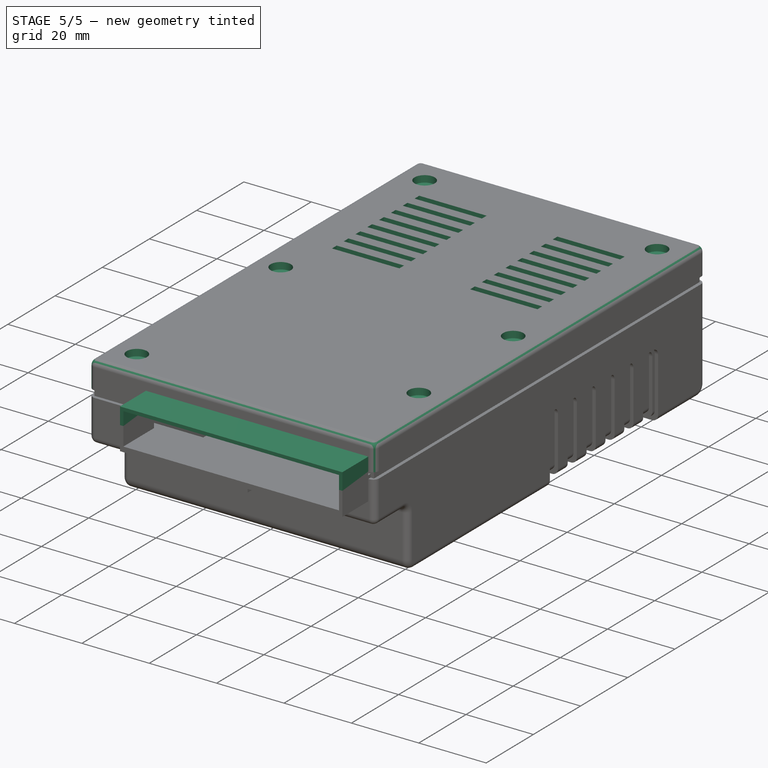
[diagram: stage 5 of 5 — iso view after this stage's code; geometry added in this stage tinted green]
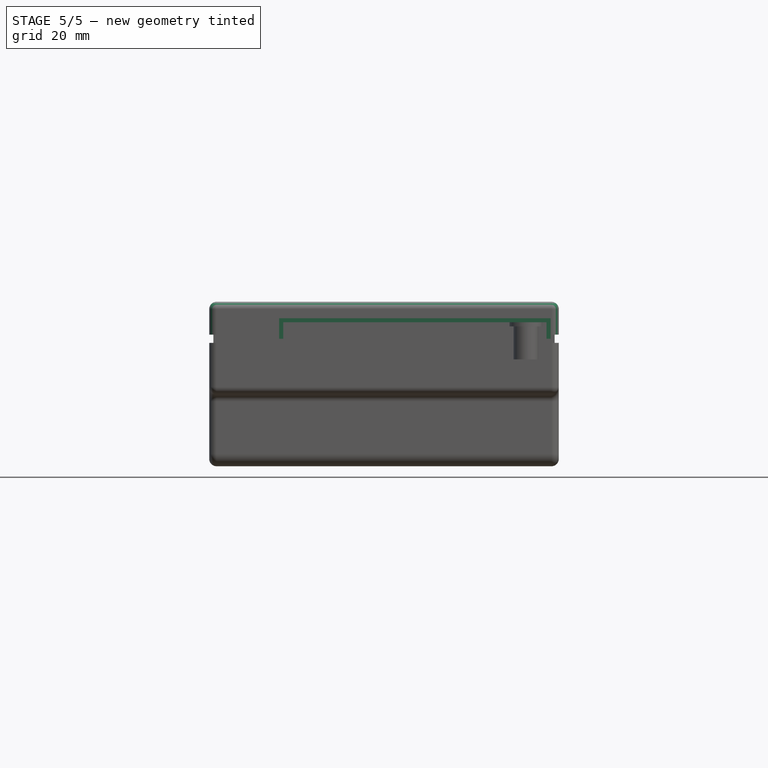
[diagram: stage 5 of 5 — front view after this stage's code; geometry added in this stage tinted green]
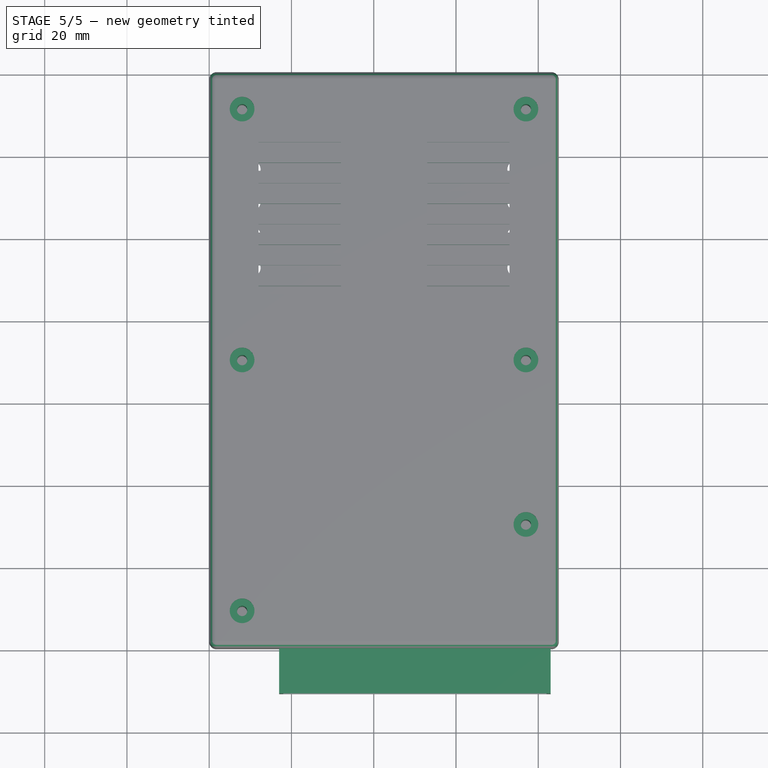
[diagram: stage 5 of 5 — top view after this stage's code; geometry added in this stage tinted green]
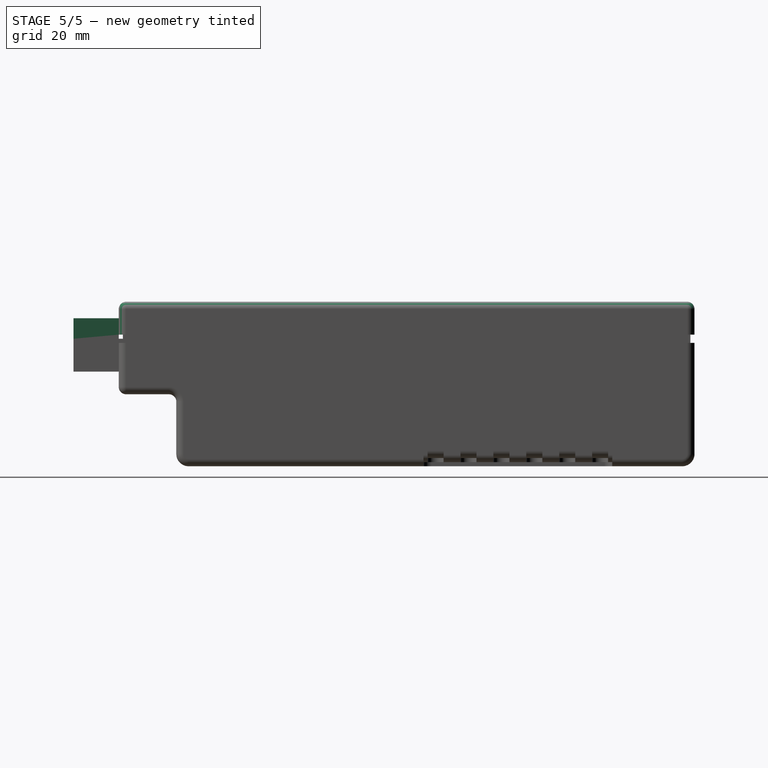
[diagram: stage 5 of 5 — right view after this stage's code; geometry added in this stage tinted green]
FEATURE [Sketcher::SketchObject] Sketch006
  AttachmentOffset = pos=(0,0,8) rot=(0,0,1;0rad)
  ExternalGeometry = -> [Sketch004]
  FullyConstrained = false
  MapMode = 5
  Placement = pos=(0,0,8) rot=(0,0,1;0rad)
  Support = -> [XY_Plane]
  sketch-geometry (6):
    g0: Circle CenterX=8 CenterY=70 CenterZ=0 NormalX=0 NormalY=0 NormalZ=1 AngleXU=0 Radius=3
    g1: Circle CenterX=77 CenterY=70 CenterZ=0 NormalX=0 NormalY=0 NormalZ=1 AngleXU=0 Radius=3
    g2: Circle CenterX=8 CenterY=9 CenterZ=0 NormalX=0 NormalY=0 NormalZ=1 AngleXU=0 Radius=3
    g3: Circle CenterX=77 CenterY=30 CenterZ=0 NormalX=0 NormalY=0 NormalZ=1 AngleXU=0 Radius=3
    g4: Circle CenterX=8 CenterY=131 CenterZ=0 NormalX=0 NormalY=0 NormalZ=1 AngleXU=0 Radius=3
    g5: Circle CenterX=77 CenterY=131 CenterZ=0 NormalX=0 NormalY=0 NormalZ=1 AngleXU=0 Radius=3
  constraints (12):
    c: Equal(g-8,g4)
    c: Equal(g5,g-7)
    c: Equal(g5,g1)
    c: Equal(g5,g0)
    c: Equal(g0,g2)
    c: Equal(g1,g3)
    c: Coincident(g3,g-5)
    c: Coincident(g2,g-4)
    c: Coincident(g0,g-3)
    c: Coincident(g1,g-6)
    c: Coincident(g5,g-7)
    c: Coincident(g4,g-8)
FEATURE [Sketcher::SketchObject] Sketch005
  ExternalGeometry = -> [Sketch004]
  FullyConstrained = false
  MapMode = 5
  Support = -> [XY_Plane]
  sketch-geometry (6):
    g0: Circle CenterX=8 CenterY=131 CenterZ=0 NormalX=0 NormalY=0 NormalZ=1 AngleXU=0 Radius=1.25
    g1: Circle CenterX=77 CenterY=131 CenterZ=0 NormalX=0 NormalY=0 NormalZ=1 AngleXU=0 Radius=1.25
    g2: Circle CenterX=8 CenterY=70 CenterZ=0 NormalX=0 NormalY=0 NormalZ=1 AngleXU=0 Radius=1.25
    g3: Circle CenterX=77 CenterY=70 CenterZ=0 NormalX=0 NormalY=0 NormalZ=1 AngleXU=0 Radius=1.25
    g4: Circle CenterX=8 CenterY=9 CenterZ=0 NormalX=0 NormalY=0 NormalZ=1 AngleXU=0 Radius=1.25
    g5: Circle CenterX=77 CenterY=30 CenterZ=0 NormalX=0 NormalY=0 NormalZ=1 AngleXU=0 Radius=1.25
  constraints (12):
    c: Radius(g0) = 1.25
    c: Equal(g0,g1)
    c: Equal(g1,g3)
    c: Equal(g0,g2)
    c: Equal(g4,g2)
    c: Equal(g3,g5)
    c: Coincident(g4,g-5)
    c: Coincident(g-6,g5)
    c: Coincident(g3,g-4)
    c: Coincident(g2,g-3)
    c: Coincident(g0,g-7)
    c: Coincident(g1,g-8)
FEATURE [PartDesign::Pocket] Pocket002  label="BottomScrewHoles"
  AllowMultiFace = false
  BaseFeature = -> Pad002
  Length = 6
  Length2 = 8
  Profile = -> Sketch005
  Type = 4
FEATURE [PartDesign::Pocket] Pocket003  label="CounterSinkScrews"
  AllowMultiFace = false
  BaseFeature = -> Pocket002
  Length = 2
  Length2 = 100
  Profile = -> Sketch006
  Type = 0
FEATURE [Sketcher::SketchObject] Sketch007
  AttachmentOffset = pos=(0,0,8) rot=(0,0,1;0rad)
  ExternalGeometry = -> [Sketch002]
  FullyConstrained = false
  MapMode = 5
  Placement = pos=(0,0,8) rot=(0,0,1;0rad)
  Support = -> [XY_Plane]
  sketch-geometry (64):
    g0: LineSegment StartX=12 StartY=123 StartZ=0 EndX=32 EndY=123 EndZ=0
    g1: LineSegment StartX=32 StartY=123 StartZ=0 EndX=32 EndY=121 EndZ=0
    g2: LineSegment StartX=32 StartY=121 StartZ=0 EndX=12 EndY=121 EndZ=0
    g3: LineSegment StartX=12 StartY=121 StartZ=0 EndX=12 EndY=123 EndZ=0
    g4: LineSegment StartX=12 StartY=118 StartZ=0 EndX=32 EndY=118 EndZ=0
    g5: LineSegment StartX=32 StartY=118 StartZ=0 EndX=32 EndY=116 EndZ=0
    g6: LineSegment StartX=32 StartY=116 StartZ=0 EndX=12 EndY=116 EndZ=0
    g7: LineSegment StartX=12 StartY=116 StartZ=0 EndX=12 EndY=118 EndZ=0
    g8: LineSegment StartX=12 StartY=113 StartZ=0 EndX=32 EndY=113 EndZ=0
    g9: LineSegment StartX=32 StartY=113 StartZ=0 EndX=32 EndY=111 EndZ=0
    g10: LineSegment StartX=32 StartY=111 StartZ=0 EndX=12 EndY=111 EndZ=0
    g11: LineSegment StartX=12 StartY=111 StartZ=0 EndX=12 EndY=113 EndZ=0
    g12: LineSegment StartX=12 StartY=108 StartZ=0 EndX=32 EndY=108 EndZ=0
    g13: LineSegment StartX=32 StartY=108 StartZ=0 EndX=32 EndY=106 EndZ=0
    g14: LineSegment StartX=32 StartY=106 StartZ=0 EndX=12 EndY=106 EndZ=0
    g15: LineSegment StartX=12 StartY=106 StartZ=0 EndX=12 EndY=108 EndZ=0
    g16: LineSegment StartX=12 StartY=103 StartZ=0 EndX=32 EndY=103 EndZ=0
    g17: LineSegment StartX=32 StartY=103 StartZ=0 EndX=32 EndY=101 EndZ=0
    g18: LineSegment StartX=32 StartY=101 StartZ=0 EndX=12 EndY=101 EndZ=0
    g19: LineSegment StartX=12 StartY=101 StartZ=0 EndX=12 EndY=103 EndZ=0
    g20: LineSegment StartX=12 StartY=98 StartZ=0 EndX=32 EndY=98 EndZ=0
    g21: LineSegment StartX=32 StartY=98 StartZ=0 EndX=32 EndY=96 EndZ=0
    g22: LineSegment StartX=32 StartY=96 StartZ=0 EndX=12 EndY=96 EndZ=0
    g23: LineSegment StartX=12 StartY=96 StartZ=0 EndX=12 EndY=98 EndZ=0
    g24: LineSegment StartX=12 StartY=93 StartZ=0 EndX=32 EndY=93 EndZ=0
    g25: LineSegment StartX=32 StartY=93 StartZ=0 EndX=32 EndY=91 EndZ=0
    g26: LineSegment StartX=32 StartY=91 StartZ=0 EndX=12 EndY=91 EndZ=0
    g27: LineSegment StartX=12 StartY=91 StartZ=0 EndX=12 EndY=93 EndZ=0
    g28: LineSegment StartX=12 StartY=88 StartZ=0 EndX=32 EndY=88 EndZ=0
    g29: LineSegment StartX=32 StartY=88 StartZ=0 EndX=32 EndY=86 EndZ=0
    g30: LineSegment StartX=32 StartY=86 StartZ=0 EndX=12 EndY=86 EndZ=0
    g31: LineSegment StartX=12 StartY=86 StartZ=0 EndX=12 EndY=88 EndZ=0
    g32: LineSegment StartX=53 StartY=123 StartZ=0 EndX=73 EndY=123 EndZ=0
    g33: LineSegment StartX=73 StartY=123 StartZ=0 EndX=73 EndY=121 EndZ=0
    g34: LineSegment StartX=73 StartY=121 StartZ=0 EndX=53 EndY=121 EndZ=0
    g35: LineSegment StartX=53 StartY=121 StartZ=0 EndX=53 EndY=123 EndZ=0
    g36: LineSegment StartX=53 StartY=118 StartZ=0 EndX=73 EndY=118 EndZ=0
    g37: LineSegment StartX=73 StartY=118 StartZ=0 EndX=73 EndY=116 EndZ=0
    g38: LineSegment StartX=73 StartY=116 StartZ=0 EndX=53 EndY=116 EndZ=0
    g39: LineSegment StartX=53 StartY=116 StartZ=0 EndX=53 EndY=118 EndZ=0
    g40: LineSegment StartX=53 StartY=113 StartZ=0 EndX=73 EndY=113 EndZ=0
    g41: LineSegment StartX=73 StartY=113 StartZ=0 EndX=73 EndY=111 EndZ=0
    g42: LineSegment StartX=73 StartY=111 StartZ=0 EndX=53 EndY=111 EndZ=0
    g43: LineSegment StartX=53 StartY=111 StartZ=0 EndX=53 EndY=113 EndZ=0
    g44: LineSegment StartX=53 StartY=108 StartZ=0 EndX=73 EndY=108 EndZ=0
    g45: LineSegment StartX=73 StartY=108 StartZ=0 EndX=73 EndY=106 EndZ=0
    g46: LineSegment StartX=73 StartY=106 StartZ=0 EndX=53 EndY=106 EndZ=0
    g47: LineSegment StartX=53 StartY=106 StartZ=0 EndX=53 EndY=108 EndZ=0
    g48: LineSegment StartX=53 StartY=103 StartZ=0 EndX=73 EndY=103 EndZ=0
    g49: LineSegment StartX=73 StartY=103 StartZ=0 EndX=73 EndY=101 EndZ=0
    g50: LineSegment StartX=73 StartY=101 StartZ=0 EndX=53 EndY=101 EndZ=0
    g51: LineSegment StartX=53 StartY=101 StartZ=0 EndX=53 EndY=103 EndZ=0
    g52: LineSegment StartX=53 StartY=98 StartZ=0 EndX=73 EndY=98 EndZ=0
    g53: LineSegment StartX=73 StartY=98 StartZ=0 EndX=73 EndY=96 EndZ=0
    g54: LineSegment StartX=73 StartY=96 StartZ=0 EndX=53 EndY=96 EndZ=0
    g55: LineSegment StartX=53 StartY=96 StartZ=0 EndX=53 EndY=98 EndZ=0
    g56: LineSegment StartX=53 StartY=93 StartZ=0 EndX=73 EndY=93 EndZ=0
    g57: LineSegment StartX=73 StartY=93 StartZ=0 EndX=73 EndY=91 EndZ=0
    g58: LineSegment StartX=73 StartY=91 StartZ=0 EndX=53 EndY=91 EndZ=0
    g59: LineSegment StartX=53 StartY=91 StartZ=0 EndX=53 EndY=93 EndZ=0
    g60: LineSegment StartX=53 StartY=88 StartZ=0 EndX=73 EndY=88 EndZ=0
    g61: LineSegment StartX=73 StartY=88 StartZ=0 EndX=73 EndY=86 EndZ=0
    g62: LineSegment StartX=73 StartY=86 StartZ=0 EndX=53 EndY=86 EndZ=0
    g63: LineSegment StartX=53 StartY=86 StartZ=0 EndX=53 EndY=88 EndZ=0
  constraints (193):
    c: Coincident(g0,g1)
    c: Coincident(g1,g2)
    c: Coincident(g2,g3)
    c: Coincident(g3,g0)
    c: Horizontal(g0)
    c: Horizontal(g2)
    c: Vertical(g1)
    c: Vertical(g3)
    c: Coincident(g4,g5)
    c: Coincident(g5,g6)
    c: Coincident(g6,g7)
    c: Coincident(g7,g4)
    c: Horizontal(g4)
    c: Horizontal(g6)
    c: Vertical(g5)
    c: Vertical(g7)
    c: Coincident(g8,g9)
    c: Coincident(g9,g10)
    c: Coincident(g10,g11)
    c: Coincident(g11,g8)
    c: Horizontal(g8)
    c: Horizontal(g10)
    c: Vertical(g9)
    c: Vertical(g11)
    c: Coincident(g12,g13)
    c: Coincident(g13,g14)
    c: Coincident(g14,g15)
    c: Coincident(g15,g12)
    c: Horizontal(g12)
    c: Horizontal(g14)
    c: Vertical(g13)
    c: Vertical(g15)
    c: Coincident(g16,g17)
    c: Coincident(g17,g18)
    c: Coincident(g18,g19)
    c: Coincident(g19,g16)
    c: Horizontal(g16)
    c: Horizontal(g18)
    c: Vertical(g17)
    c: Vertical(g19)
    c: Coincident(g20,g21)
    c: Coincident(g21,g22)
    c: Coincident(g22,g23)
    c: Coincident(g23,g20)
    c: Horizontal(g20)
    c: Horizontal(g22)
    c: Vertical(g21)
    c: Vertical(g23)
    c: Coincident(g24,g25)
    c: Coincident(g25,g26)
    c: Coincident(g26,g27)
    c: Coincident(g27,g24)
    c: Horizontal(g24)
    c: Horizontal(g26)
    c: Vertical(g25)
    c: Vertical(g27)
    c: Coincident(g28,g29)
    c: Coincident(g29,g30)
    c: Coincident(g30,g31)
    c: Coincident(g31,g28)
    c: Horizontal(g28)
    c: Horizontal(g30)
    c: Vertical(g29)
    c: Vertical(g31)
    c: Equal(g0,g4)
    c: Equal(g3,g7)
    c: Equal(g7,g11)
    c: Equal(g8,g12)
    c: Equal(g7,g11)
    c: Equal(g15,g11)
    c: Equal(g15,g19)
    c: Equal(g12,g16)
    c: Equal(g19,g23)
    c: Equal(g16,g20)
    c: Equal(g23,g27)
    c: Equal(g20,g24)
    c: Equal(g24,g28)
    c: Equal(g27,g31)
    c: DistanceY(g0,g-4) = 15
    c: DistanceX(g0,g0) = 20
    c: Equal(g8,g4)
    c: DistanceY(g4,g1) = 3
    c: DistanceY(g1,g1) = 2
    c: DistanceX(g4,g2) = 0
    c: DistanceX(g6,g8) = 0
    c: DistanceX(g10,g12) = 0
    c: DistanceX(g16,g14) = 0
    c: DistanceX(g20,g18) = 0
    c: DistanceX(g22,g24) = 0
    c: DistanceX(g26,g28) = 0
    c: DistanceY(g8,g5) = 3
    c: DistanceY(g12,g9) = 3
    c: DistanceY(g16,g13) = 3
    c: DistanceY(g20,g17) = 3
    c: DistanceY(g24,g21) = 3
    c: DistanceY(g28,g25) = 3
    c: DistanceX(g-4,g0) = 10
    c: Coincident(g32,g33)
    c: Coincident(g33,g34)
    c: Coincident(g34,g35)
    c: Coincident(g35,g32)
    c: Horizontal(g32)
    c: Horizontal(g34)
    c: Vertical(g33)
    c: Vertical(g35)
    c: Coincident(g36,g37)
    c: Coincident(g37,g38)
    c: Coincident(g38,g39)
    c: Coincident(g39,g36)
    c: Horizontal(g36)
    c: Horizontal(g38)
    c: Vertical(g37)
    c: Vertical(g39)
    c: Coincident(g40,g41)
    c: Coincident(g41,g42)
    c: Coincident(g42,g43)
    c: Coincident(g43,g40)
    c: Horizontal(g40)
    c: Horizontal(g42)
    c: Vertical(g41)
    c: Vertical(g43)
    c: Coincident(g44,g45)
    c: Coincident(g45,g46)
    c: Coincident(g46,g47)
    c: Coincident(g47,g44)
    c: Horizontal(g44)
    c: Horizontal(g46)
    c: Vertical(g45)
    c: Vertical(g47)
    c: Coincident(g48,g49)
    c: Coincident(g49,g50)
    c: Coincident(g50,g51)
    c: Coincident(g51,g48)
    c: Horizontal(g48)
    c: Horizontal(g50)
    c: Vertical(g49)
    c: Vertical(g51)
    c: Coincident(g52,g53)
    c: Coincident(g53,g54)
    c: Coincident(g54,g55)
    c: Coincident(g55,g52)
    c: Horizontal(g52)
    c: Horizontal(g54)
    c: Vertical(g53)
    c: Vertical(g55)
    c: Coincident(g56,g57)
    c: Coincident(g57,g58)
    c: Coincident(g58,g59)
    c: Coincident(g59,g56)
    c: Horizontal(g56)
    c: Horizontal(g58)
    c: Vertical(g57)
    c: Vertical(g59)
    c: Coincident(g60,g61)
    c: Coincident(g61,g62)
    c: Coincident(g62,g63)
    c: Coincident(g63,g60)
    c: Horizontal(g60)
    c: Horizontal(g62)
    c: Vertical(g61)
    c: Vertical(g63)
    c: Equal(g32,g36)
    c: Equal(g36,g40)
    c: Equal(g44,g40)
    c: Equal(g44,g48)
    c: Equal(g48,g52)
    c: Equal(g52,g56)
    c: Equal(g56,g60)
    c: Equal(g33,g37)
    c: Equal(g37,g41)
    c: Equal(g41,g45)
    c: Equal(g45,g49)
    c: Equal(g49,g53)
    c: Equal(g53,g57)
    c: Equal(g57,g61)
    c: DistanceX(g36,g34) = 0
    c: DistanceX(g38,g40) = 0
    c: DistanceX(g44,g42) = 0
    c: DistanceX(g46,g48) = 0
    c: DistanceX(g50,g52) = 0
    c: DistanceX(g54,g56) = 0
    c: DistanceX(g58,g60) = 0
    c: DistanceY(g36,g33) = 3
    c: DistanceY(g40,g37) = 3
    c: DistanceY(g44,g41) = 3
    c: DistanceY(g48,g45) = 3
    c: DistanceY(g52,g49) = 3
    c: DistanceY(g56,g53) = 3
    c: DistanceY(g60,g57) = 3
    c: DistanceX(g32,g32) = 20
    c: Equal(g35,g1)
    c: DistanceX(g32,g-5) = 10
    c: DistanceY(g32,g-5) = 15
FEATURE [PartDesign::Pocket] Pocket004  label="BottomAirHoles"
  AllowMultiFace = false
  BaseFeature = -> Pocket003
  Length = 2
  Length2 = 100
  Profile = -> Sketch007
  Type = 0
FEATURE [Sketcher::SketchObject] Sketch020
  ExternalGeometry = -> [Sketch019]
  FullyConstrained = true
  MapMode = 5
  Support = -> [XY_Plane001]
  sketch-geometry (6):
    g0: Circle CenterX=8 CenterY=131 CenterZ=0 NormalX=0 NormalY=0 NormalZ=1 AngleXU=0 Radius=1.25
    g1: Circle CenterX=77 CenterY=131 CenterZ=0 NormalX=0 NormalY=0 NormalZ=1 AngleXU=0 Radius=1.25
    g2: Circle CenterX=8 CenterY=70 CenterZ=0 NormalX=0 NormalY=0 NormalZ=1 AngleXU=0 Radius=1.25
    g3: Circle CenterX=77 CenterY=70 CenterZ=0 NormalX=0 NormalY=0 NormalZ=1 AngleXU=0 Radius=1.25
    g4: Circle CenterX=8 CenterY=9 CenterZ=0 NormalX=0 NormalY=0 NormalZ=1 AngleXU=0 Radius=1.25
    g5: Circle CenterX=77 CenterY=30 CenterZ=0 NormalX=0 NormalY=0 NormalZ=1 AngleXU=0 Radius=1.25
  constraints (12):
    c: Coincident(g0,g-3)
    c: Coincident(g1,g-4)
    c: Coincident(g2,g-5)
    c: Coincident(g3,g-6)
    c: Coincident(g4,g-7)
    c: Coincident(g5,g-8)
    c: Equal(g5,g4)
    c: Equal(g4,g3)
    c: Equal(g3,g2)
    c: Equal(g1,g2)
    c: Equal(g0,g2)
    c: Radius(g0) = 1.25
FEATURE [Sketcher::SketchObject] Sketch021
  AttachmentOffset = pos=(0,0,11) rot=(0,0,1;0rad)
  ExternalGeometry = -> [Sketch]
  FullyConstrained = true
  MapMode = 5
  Placement = pos=(0,-11,-2.4e-15) rot=(1,0,0;1.5708rad)
  Support = -> [XZ_Plane]
  sketch-geometry (4):
    g0: LineSegment StartX=17 StartY=4 StartZ=0 EndX=83 EndY=4 EndZ=0
    g1: LineSegment StartX=17 StartY=4 StartZ=0 EndX=17 EndY=-1 EndZ=0
    g2: LineSegment StartX=83 StartY=4 StartZ=0 EndX=83 EndY=-1 EndZ=0
    g3: LineSegment StartX=17 StartY=-1 StartZ=0 EndX=83 EndY=-1 EndZ=0
  constraints (12):
    c: DistanceX(g0,g0) = 66
    c: Horizontal(g0)
    c: DistanceX(g0,g-3) = 2
    c: DistanceY(g-3,g0) = 4
    c: Coincident(g1,g0)
    c: Vertical(g1)
    c: Coincident(g2,g0)
    c: Vertical(g2)
    c: DistanceY(g1,g0) = 5
    c: DistanceY(g2,g1) = 0
    c: Coincident(g3,g1)
    c: Coincident(g3,g2)
FEATURE [PartDesign::Pad] Pad006  label="EdgeConnectorShroud"
  AllowMultiFace = false
  BaseFeature = -> Pocket004
  Direction = (1,1,1)
  Length = 11
  Length2 = 100
  Profile = -> Sketch021
  Reversed = true
  Type = 0
FEATURE [Sketcher::SketchObject] Sketch022
  AttachmentOffset = pos=(0,0,11) rot=(0,0,1;0rad)
  ExternalGeometry = -> [Sketch021]
  FullyConstrained = true
  MapMode = 5
  Placement = pos=(0,-11,-2.4e-15) rot=(1,0,0;1.5708rad)
  Support = -> [XZ_Plane]
  sketch-geometry (4):
    g0: LineSegment StartX=18 StartY=3 StartZ=0 EndX=82 EndY=3 EndZ=0
    g1: LineSegment StartX=82 StartY=3 StartZ=0 EndX=82 EndY=-7 EndZ=0
    g2: LineSegment StartX=82 StartY=-7 StartZ=0 EndX=18 EndY=-7 EndZ=0
    g3: LineSegment StartX=18 StartY=-7 StartZ=0 EndX=18 EndY=3 EndZ=0
  constraints (12):
    c: Coincident(g0,g1)
    c: Coincident(g1,g2)
    c: Coincident(g2,g3)
    c: Coincident(g3,g0)
    c: Horizontal(g0)
    c: Horizontal(g2)
    c: Vertical(g1)
    c: Vertical(g3)
    c: DistanceY(g1,g1) = 10
    c: DistanceX(g0,g0) = 64
    c: DistanceY(g-1,g0) = 3
    c: DistanceX(g-1,g2) = 18
FEATURE [PartDesign::Pocket] Pocket016  label="EdgeConnectorHollow"
  AllowMultiFace = false
  BaseFeature = -> Pad006
  Length = 13
  Length2 = 100
  Profile = -> Sketch022
  Type = 0
FEATURE [PartDesign::Body] Body  label="Bottom"
  Group = -> [Sketch,Pad,Sketch001,Pocket,Sketch002,Pocket001,Sketch003,Pad001,Sketch004,Pad002,Sketch005,Sketch006,Pocket002,Pocket003,Sketch007,Pocket004,Sketch021,Pad006,Sketch022,Pocket016]
  Origin = -> Origin
  Tip = -> Pocket016
FEATURE [Sketcher::SketchObject] Sketch023
  AttachmentOffset = pos=(0,0,13) rot=(0,0,1;0rad)
  ExternalGeometry = -> [Sketch]
  FullyConstrained = false
  MapMode = 5
  Placement = pos=(0,-13,-2.9e-15) rot=(1,0,0;1.5708rad)
  Support = -> [XZ_Plane001]
  sketch-geometry (8):
    g0: LineSegment StartX=83 StartY=8 StartZ=0 EndX=83 EndY=-5 EndZ=0
    g1: LineSegment StartX=83 StartY=-5 StartZ=0 EndX=54.875 EndY=-5 EndZ=0
    g2: LineSegment StartX=17 StartY=-5 StartZ=0 EndX=17 EndY=8 EndZ=0
    g3: LineSegment StartX=17 StartY=8 StartZ=0 EndX=83 EndY=8 EndZ=0
    g4: LineSegment StartX=54.875 StartY=-5 StartZ=0 EndX=54.875 EndY=-6 EndZ=0
    g5: LineSegment StartX=54.875 StartY=-6 StartZ=0 EndX=45.125 EndY=-6 EndZ=0
    g6: LineSegment StartX=45.125 StartY=-6 StartZ=0 EndX=45.125 EndY=-5 EndZ=0
    g7: LineSegment StartX=45.125 StartY=-5 StartZ=0 EndX=17 EndY=-5 EndZ=0
  constraints (23):
    c: Coincident(g0,g1)
    c: Coincident(g7,g2)
    c: Horizontal(g1)
    c: Vertical(g0)
    c: Vertical(g2)
    c: DistanceY(g7,g2) = 13
    c: DistanceX(g2,g0) = 66
    c: Coincident(g3,g2)
    c: Coincident(g3,g0)
    c: Horizontal(g3)
    c: Coincident(g4,g5)
    c: Coincident(g5,g6)
    c: Horizontal(g5)
    c: Vertical(g4)
    c: Vertical(g6)
    c: Tangent(g1,g7)
    c: Coincident(g6,g7)
    c: Coincident(g4,g1)
    c: Equal(g1,g7)
    c: DistanceY(g4,g1) = 1
    c: DistanceX(g0,g-3) = 2
    c: DistanceY(g-3,g0) = 8
    c: DistanceX(g5,g4) = 9.75
FEATURE [Part::Fillet] Fillet  label="BottomCaseRounding"
  Base = -> Pocket016
  Edges = 8 edges r=1.8: [Edge1,Edge2,Edge4,Edge5,Edge7,Edge8,Edge10,Edge22]
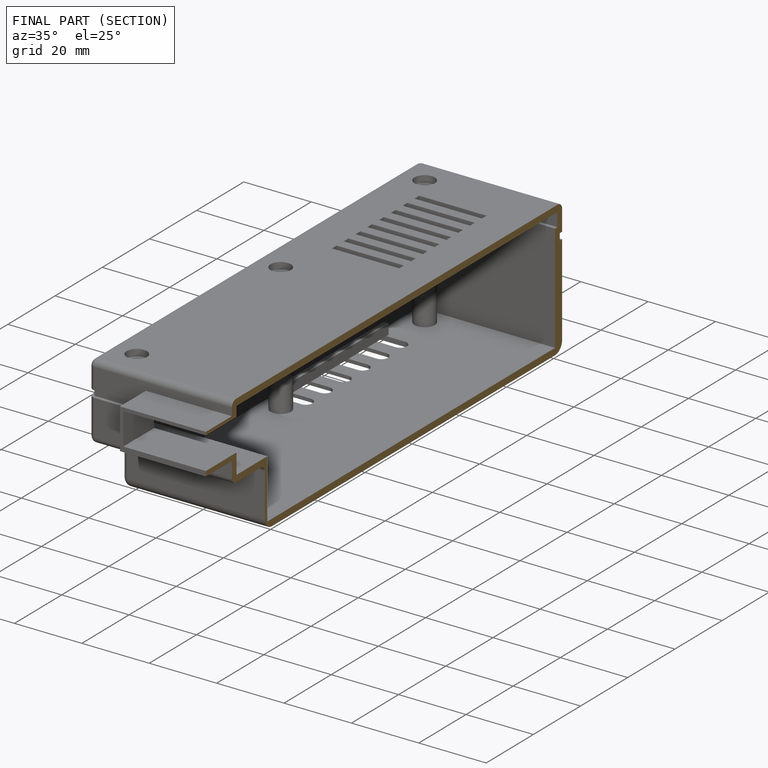
[diagram: finished part — half-section view (interior)]
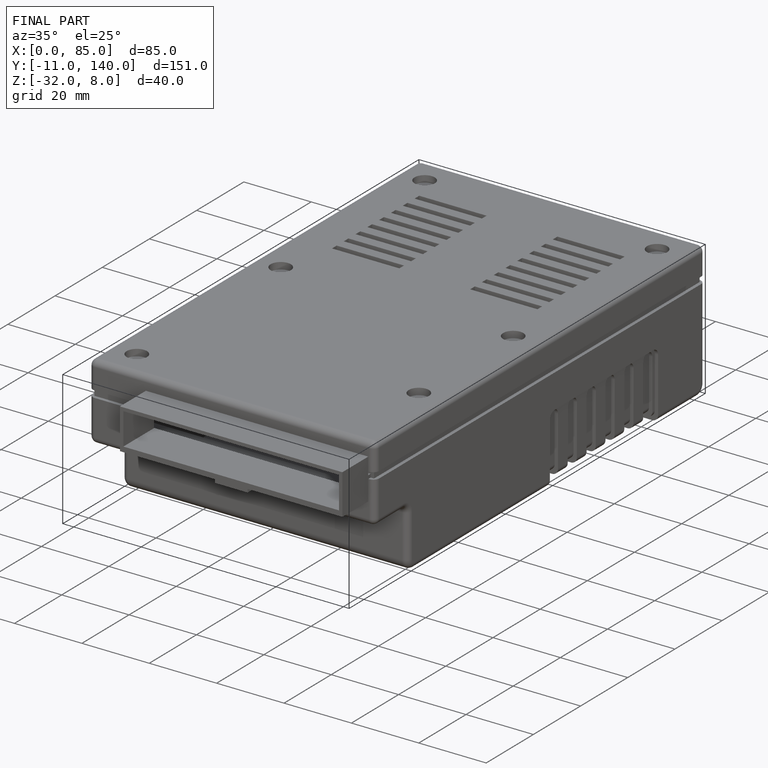
[diagram: finished part — iso view with bounding-box wireframe]
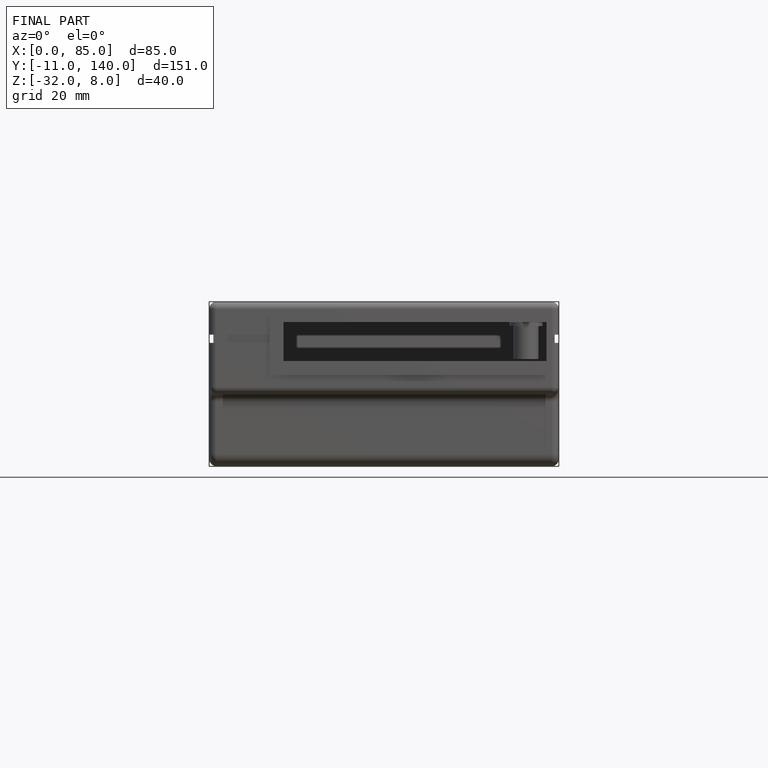
[diagram: finished part — front view with bounding-box wireframe]
